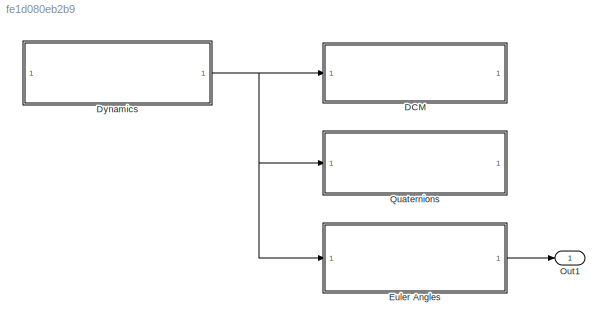
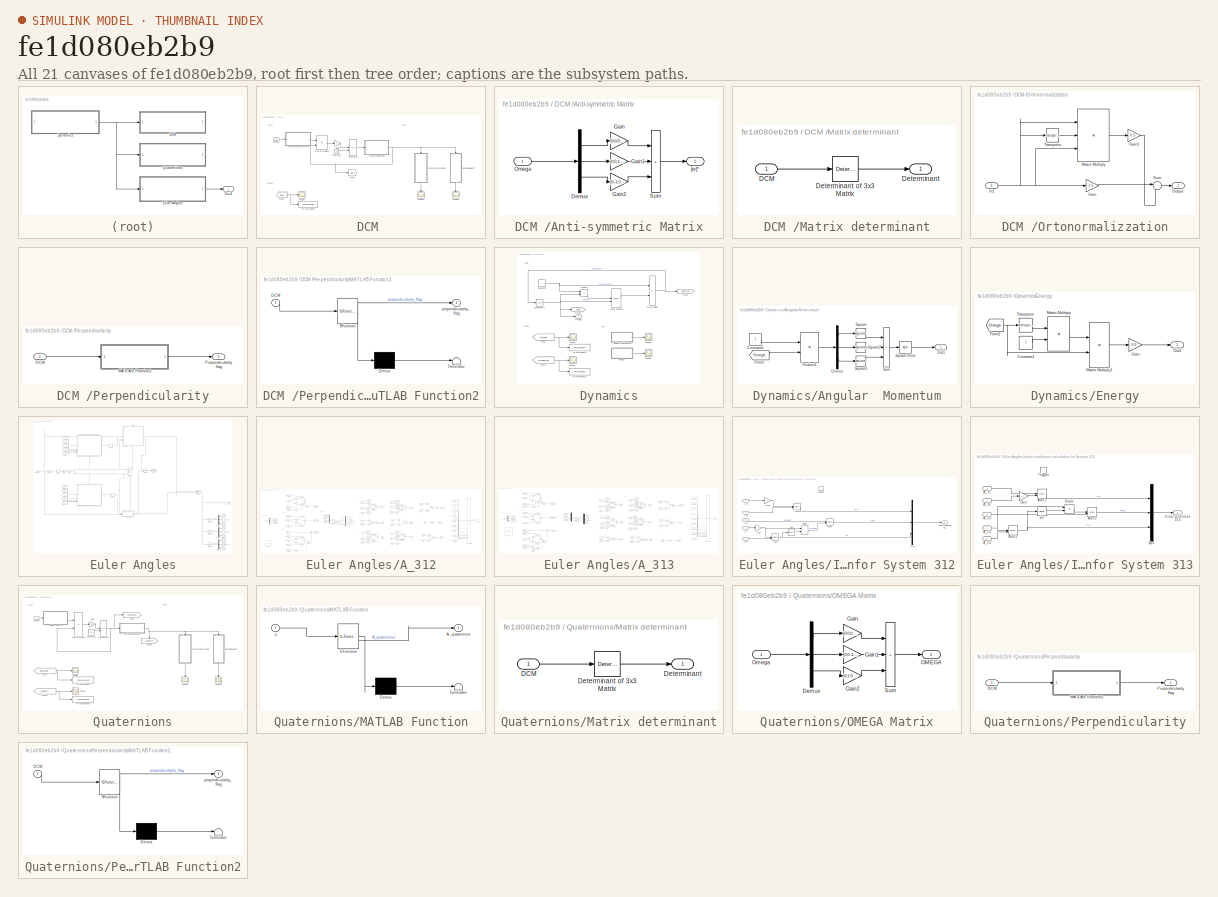
[diagram: thumbnail index - all 21 canvases of the model, root first then tree order]
MODEL slx_fe1d080eb2b9
KIND model
CONFIG AbsTol = auto
CONFIG EnableMultiTasking = off
CONFIG FixedStep = 0.1
CONFIG MaxStep = auto
CONFIG MinStep = auto
CONFIG RelTol = 1e-3
CONFIG SampleTimeConstraint = Unconstrained
CONFIG SolverName = ode4
CONFIG StartTime = 0.0
CONFIG StopTime = 100
BLOCK [SubSystem] DCM 
BLOCK [SubSystem] DCM /Anti-symmetric Matrix
  NameLocation = top
BLOCK [Demux] DCM /Anti-symmetric Matrix/Demux
  Outputs = 3
BLOCK [Gain] DCM /Anti-symmetric Matrix/Gain
  Gain = [0,0,0;0,0,-1;0,1,0]
BLOCK [Gain] DCM /Anti-symmetric Matrix/Gain1
  Gain = [0,0,1;0,0,0;-1,0,0]
BLOCK [Gain] DCM /Anti-symmetric Matrix/Gain2
  Gain = [0,-1,0;1,0,0;0,0,0]
BLOCK [Inport] DCM /Anti-symmetric Matrix/Omega
BLOCK [Sum] DCM /Anti-symmetric Matrix/Sum
  IconShape = rectangular
  Inputs = +++
BLOCK [Outport] DCM /Anti-symmetric Matrix/[w]^
BLOCK [Constant] DCM /Constant1
  Value = A0
BLOCK [From] DCM /From
  GotoTag = DCM
  TagVisibility = global
BLOCK [Gain] DCM /Gain1
  Gain = -1
BLOCK [Goto] DCM /Goto
  GotoTag = DCM
  TagVisibility = global
BLOCK [Integrator] DCM /Integrator2
  InitialConditionSource = external
BLOCK [Product] DCM /Matrix Multiply1
  Multiplication = Matrix(*)
BLOCK [SubSystem] DCM /Matrix determinant
BLOCK [Inport] DCM /Matrix determinant/DCM
BLOCK [Outport] DCM /Matrix determinant/Determinant
BLOCK [Reference] DCM /Matrix determinant/Determinant of 3x3 Matrix  REF=sharedutil/Determinant of
3x3 Matrix
  LibrarySourceBlock = aerolibutil/Determinant of\n3x3 Matrix
  SourceBlock = sharedutil/Determinant of\n3x3 Matrix
  SourceType = Determinant of 3x3 Matrix
BLOCK [Inport] DCM /Omega
BLOCK [SubSystem] DCM /Ortonormalizzation
  NameLocation = top
BLOCK [Gain] DCM /Ortonormalizzation/Gain
  Gain = 1.5
BLOCK [Gain] DCM /Ortonormalizzation/Gain1
  Gain = 0.5
BLOCK [Inport] DCM /Ortonormalizzation/In1
BLOCK [Product] DCM /Ortonormalizzation/Matrix Multiply
  Inputs = 3
  Multiplication = Matrix(*)
BLOCK [Outport] DCM /Ortonormalizzation/Output
  NameLocation = top
BLOCK [Sum] DCM /Ortonormalizzation/Sum
  Inputs = |+-
BLOCK [Math] DCM /Ortonormalizzation/Transpose
  Operator = transpose
BLOCK [SubSystem] DCM /Perpendicularity
BLOCK [Inport] DCM /Perpendicularity/DCM
BLOCK [SubSystem] DCM /Perpendicularity/MATLAB Function2
  ErrorFcn = Stateflow.Translate.translate
  LibrarySourceBlock = simulink/User-Defined\nFunctions/MATLAB Function
  PermitHierarchicalResolution = ExplicitOnly
  SFBlockType = MATLAB Function
  TreatAsAtomicUnit = on
BLOCK [Demux] DCM /Perpendicularity/MATLAB Function2/ Demux 
  Outputs = 1
BLOCK [S-Function] DCM /Perpendicularity/MATLAB Function2/ SFunction 
  EnableBusSupport = on
  FunctionName = sf_sfun
  PortCounts = [1 2]
  SFcnIsStateOwnerBlock = off
  SFunctionDeploymentMode = off
  Tag = Stateflow S-Function 3
BLOCK [Terminator] DCM /Perpendicularity/MATLAB Function2/ Terminator 
BLOCK [Inport] DCM /Perpendicularity/MATLAB Function2/DCM
BLOCK [Outport] DCM /Perpendicularity/MATLAB Function2/perpendicularity_flag
BLOCK [Outport] DCM /Perpendicularity/Perpendicularity flag
BLOCK [Scope] DCM /Scope
  Floating = off
  NumInputPorts = 1
  ScopeSpecificationString = Simulink.scopes.TimeScopeBlockCfg('CurrentConfiguration', extmgr.ConfigurationSet(extmgr.Configuration('Core','General UI',true),extmgr.Configuration('Core','Source UI',true),extmgr.Configuration('Sources','WiredSimulink',true,'DataLoggingVariableName','ScopeData3'),extmgr.Configuration('Visuals','Time Domain',true,'SerializedDisplays',{struct('MinYLimReal','-1.24998','MaxYLimReal','1.25','YLabelR...<+1703ch>
BLOCK [Scope] DCM /Scope1
  Floating = off
  NameLocation = left
  NumInputPorts = 1
  ScopeSpecificationString = Simulink.scopes.TimeScopeBlockCfg('CurrentConfiguration', extmgr.ConfigurationSet(extmgr.Configuration('Core','General UI',true),extmgr.Configuration('Core','Source UI',true),extmgr.Configuration('Sources','WiredSimulink',true,'DataLoggingVariableName','ScopeData6'),extmgr.Configuration('Visuals','Time Domain',true,'SerializedDisplays',{struct('MinYLimReal','0.99999999999','MaxYLimReal','1.0000000...<+1456ch>
BLOCK [Scope] DCM /Scope2
  Floating = off
  NameLocation = left
  NumInputPorts = 1
  ScopeSpecificationString = Simulink.scopes.TimeScopeBlockCfg('CurrentConfiguration', extmgr.ConfigurationSet(extmgr.Configuration('Core','General UI',true),extmgr.Configuration('Core','Source UI',true),extmgr.Configuration('Sources','WiredSimulink',true,'DataLoggingVariableName','ScopeData7'),extmgr.Configuration('Visuals','Time Domain',true,'SerializedDisplays',{struct('MinYLimReal','-0.0000000000036','MaxYLimReal','0.0000...<+1510ch>
BLOCK [ToWorkspace] DCM /To Workspace
  FixptAsFi = on
  MaxDataPoints = inf
  SampleTime = -1
  SaveFormat = Timeseries
  VariableName = simout
BLOCK [SubSystem] Dynamics
BLOCK [SubSystem] Dynamics/Angular  Momentum
BLOCK [Constant] Dynamics/Angular  Momentum/Constant1
  Value = I
BLOCK [Demux] Dynamics/Angular  Momentum/Demux
  Outputs = 3
BLOCK [From] Dynamics/Angular  Momentum/From2
  GotoTag = Omega
  TagVisibility = global
BLOCK [Outport] Dynamics/Angular  Momentum/Out1
BLOCK [Product] Dynamics/Angular  Momentum/Product1
  Multiplication = Matrix(*)
BLOCK [Math] Dynamics/Angular  Momentum/Square
  Operator = square
BLOCK [Sqrt] Dynamics/Angular  Momentum/Square Root
BLOCK [Math] Dynamics/Angular  Momentum/Square1
  Operator = square
BLOCK [Math] Dynamics/Angular  Momentum/Square2
  Operator = square
BLOCK [Sum] Dynamics/Angular  Momentum/Sum
  IconShape = rectangular
  Inputs = +++
BLOCK [Constant] Dynamics/Constant
  Value = I
BLOCK [Reference] Dynamics/Cross Product  REF=matrix_library/Cross Product
  LibrarySourceBlock = simulink/Matrix\nOperations/Cross Product
  SourceBlock = matrix_library/Cross Product
  SourceType = CrossProduct
BLOCK [SubSystem] Dynamics/Energy
BLOCK [Constant] Dynamics/Energy/Constant1
  Value = I
BLOCK [From] Dynamics/Energy/From2
  GotoTag = Omega
  TagVisibility = global
BLOCK [Gain] Dynamics/Energy/Gain
  Gain = 0.5
BLOCK [Product] Dynamics/Energy/Matrix Multiply
  Multiplication = Matrix(*)
BLOCK [Product] Dynamics/Energy/Matrix Multiply1
  Multiplication = Matrix(*)
BLOCK [Outport] Dynamics/Energy/Out1
BLOCK [Math] Dynamics/Energy/Transpose
  Operator = transpose
BLOCK [From] Dynamics/From
  GotoTag = Omega
  TagVisibility = global
BLOCK [From] Dynamics/From1
  GotoTag = Omega_dot
BLOCK [Goto] Dynamics/Goto
  GotoTag = Omega_dot
BLOCK [Goto] Dynamics/Goto1
  GotoTag = Omega
  TagVisibility = global
BLOCK [Integrator] Dynamics/Integrator1
  InitialCondition = w0
BLOCK [Product] Dynamics/Matrix Divide
  Inputs = /*
  Multiplication = Matrix(*)
BLOCK [Outport] Dynamics/Omega
BLOCK [Product] Dynamics/Product
  Multiplication = Matrix(*)
BLOCK [Scope] Dynamics/Scope
  Floating = off
  NumInputPorts = 1
  ScopeSpecificationString = Simulink.scopes.TimeScopeBlockCfg('CurrentConfiguration', extmgr.ConfigurationSet(extmgr.Configuration('Core','General UI',true),extmgr.Configuration('Core','Source UI',true),extmgr.Configuration('Sources','WiredSimulink',true),extmgr.Configuration('Visuals','Time Domain',true,'SerializedDisplays',{struct('MinYLimReal','-1.01319','MaxYLimReal','1.01319','YLabelReal','','MinYLimMag','0.00000','MaxY...<+1353ch>
BLOCK [Scope] Dynamics/Scope1
  Floating = off
  NumInputPorts = 1
  ScopeSpecificationString = Simulink.scopes.TimeScopeBlockCfg('CurrentConfiguration', extmgr.ConfigurationSet(extmgr.Configuration('Core','General UI',true),extmgr.Configuration('Core','Source UI',true),extmgr.Configuration('Sources','WiredSimulink',true,'DataLoggingVariableName','ScopeData1'),extmgr.Configuration('Visuals','Time Domain',true,'SerializedDisplays',{struct('MinYLimReal','-0.42457','MaxYLimReal','0.42457','YLab...<+1404ch>
BLOCK [Scope] Dynamics/Scope2
  Floating = off
  NumInputPorts = 1
  ScopeSpecificationString = Simulink.scopes.TimeScopeBlockCfg('CurrentConfiguration', extmgr.ConfigurationSet(extmgr.Configuration('Core','General UI',true),extmgr.Configuration('Core','Source UI',true),extmgr.Configuration('Sources','WiredSimulink',true,'DataLoggingVariableName','ScopeData1'),extmgr.Configuration('Visuals','Time Domain',true,'SerializedDisplays',{struct('MinYLimReal','0.0447132243','MaxYLimReal','0.04471322...<+1446ch>
BLOCK [Scope] Dynamics/Scope3
  Floating = off
  NumInputPorts = 1
  ScopeSpecificationString = Simulink.scopes.TimeScopeBlockCfg('CurrentConfiguration', extmgr.ConfigurationSet(extmgr.Configuration('Core','General UI',true),extmgr.Configuration('Core','Source UI',true),extmgr.Configuration('Sources','WiredSimulink',true,'DataLoggingVariableName','ScopeData2'),extmgr.Configuration('Visuals','Time Domain',true,'SerializedDisplays',{struct('MinYLimReal','0.01830474937','MaxYLimReal','0.0183047...<+1443ch>
BLOCK [ToWorkspace] Dynamics/To Workspace
  FixptAsFi = on
  MaxDataPoints = inf
  SampleTime = -1
  SaveFormat = Timeseries
  VariableName = omega
BLOCK [ToWorkspace] Dynamics/To Workspace1
  FixptAsFi = on
  MaxDataPoints = inf
  SampleTime = -1
  SaveFormat = Timeseries
  VariableName = omega_dot
BLOCK [SubSystem] Euler Angles
  Commented = on
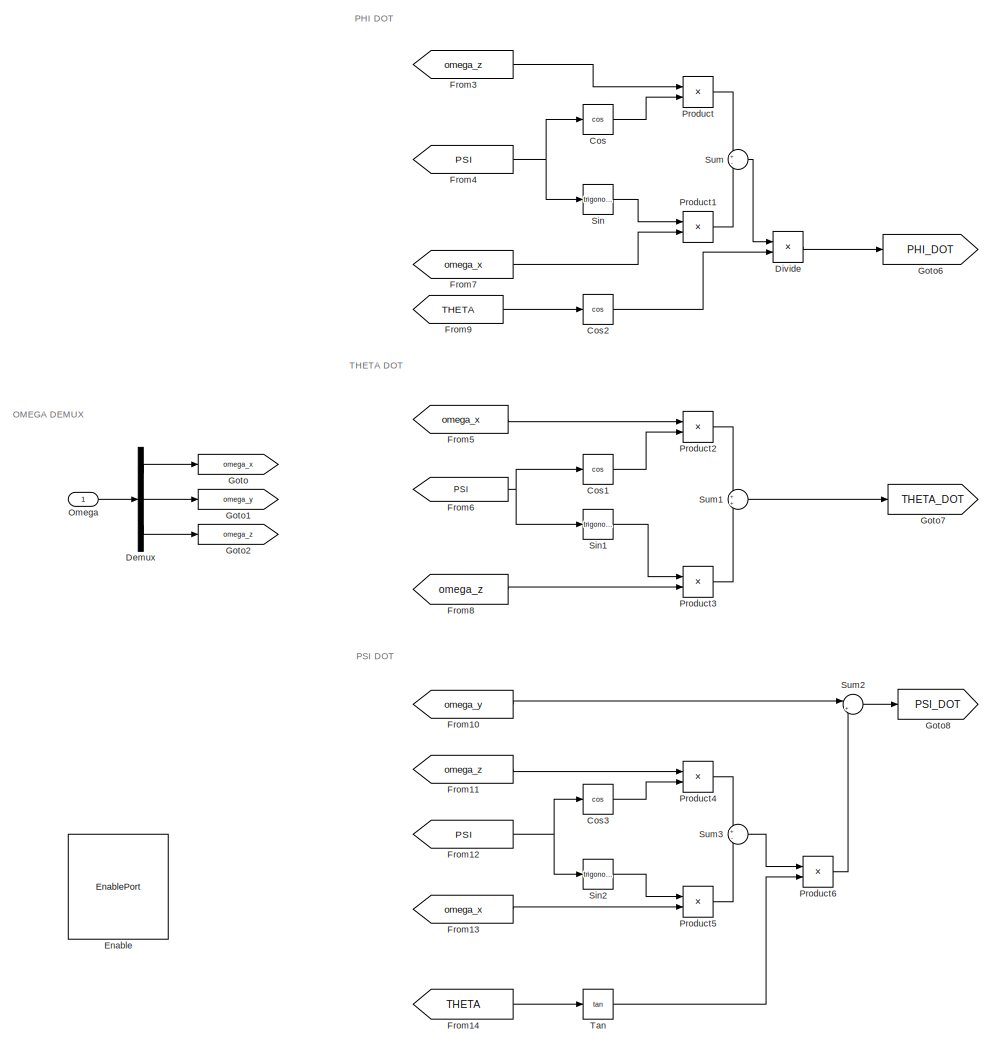
[diagram: Euler Angles/A_312 - part 1/4, left side, full height]
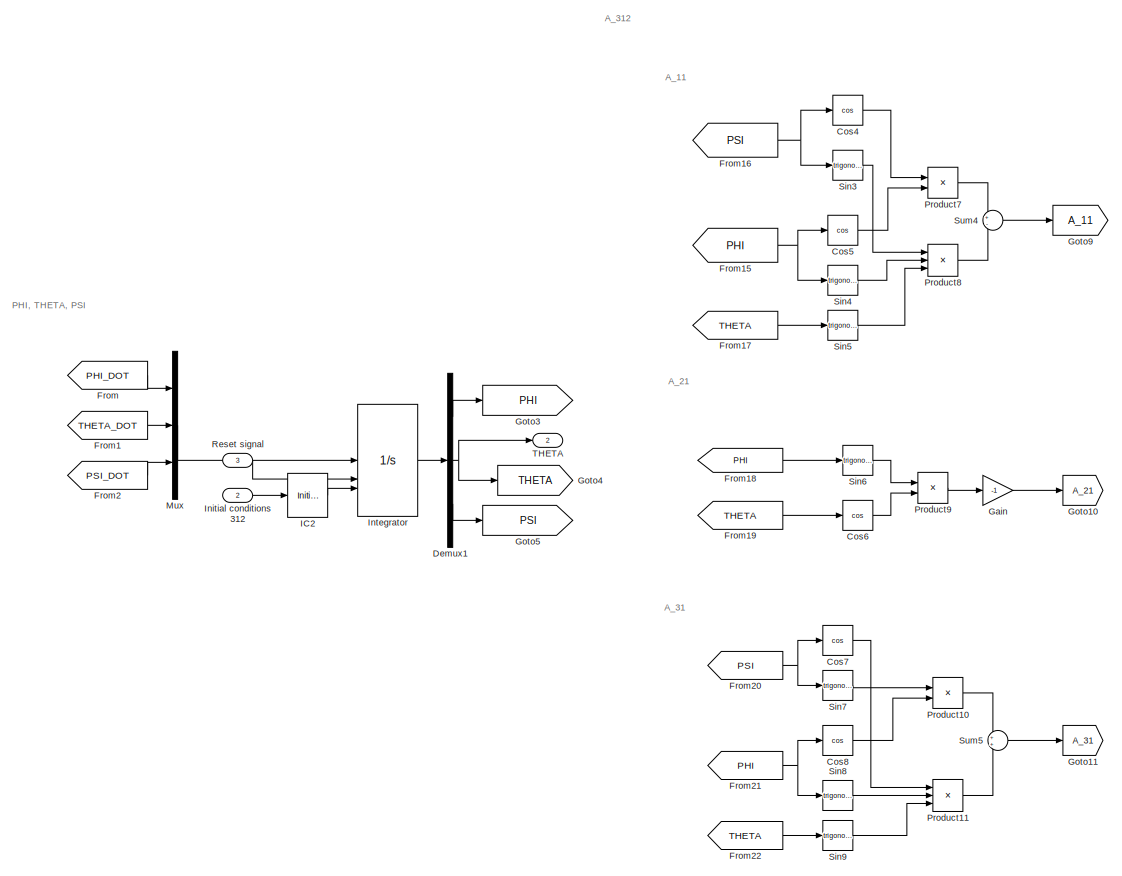
[diagram: Euler Angles/A_312 - part 2/4, center side, full height]
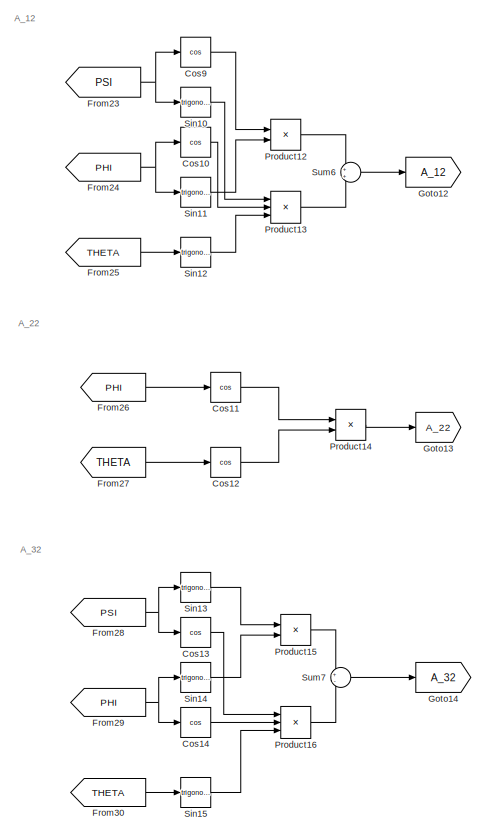
[diagram: Euler Angles/A_312 - part 3/4, center side, full height]
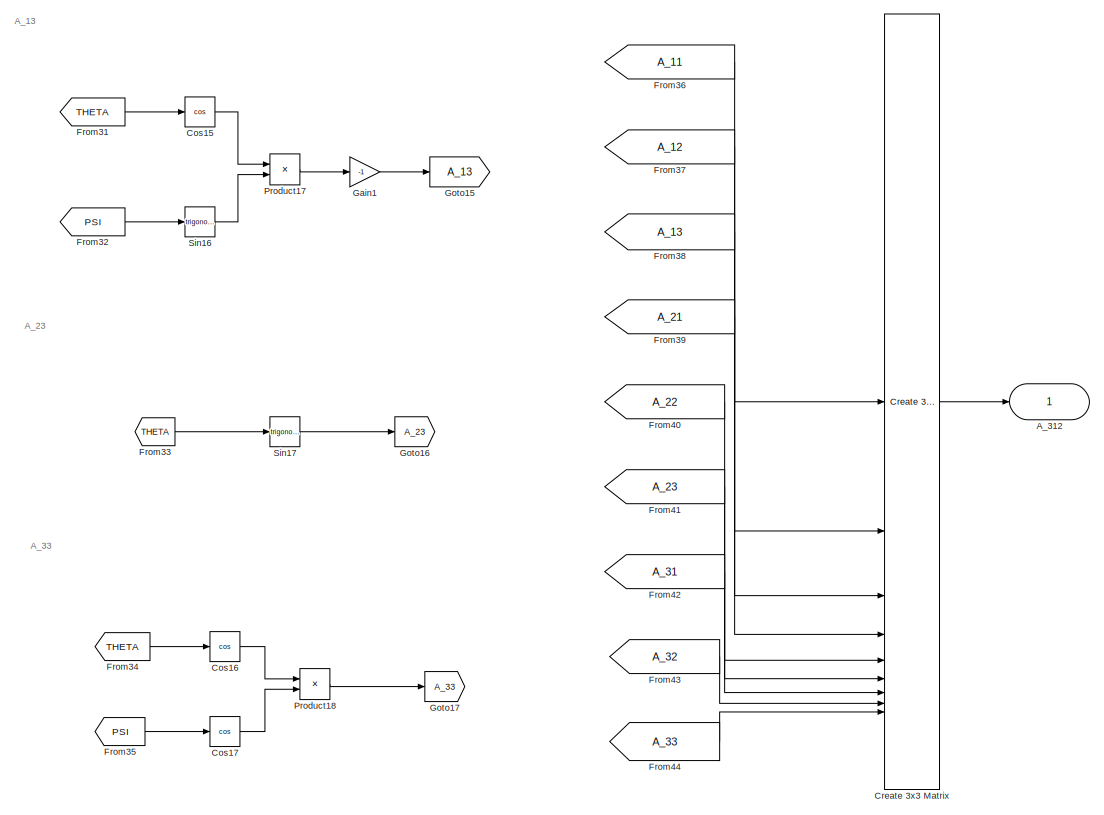
[diagram: Euler Angles/A_312 - part 4/4, right side, full height]
BLOCK [SubSystem] Euler Angles/A_312
BLOCK [Outport] Euler Angles/A_312/A_312
BLOCK [Trigonometry] Euler Angles/A_312/Cos
  Operator = cos
BLOCK [Trigonometry] Euler Angles/A_312/Cos1
  Operator = cos
BLOCK [Trigonometry] Euler Angles/A_312/Cos10
  Operator = cos
BLOCK [Trigonometry] Euler Angles/A_312/Cos11
  Operator = cos
BLOCK [Trigonometry] Euler Angles/A_312/Cos12
  Operator = cos
BLOCK [Trigonometry] Euler Angles/A_312/Cos13
  Operator = cos
BLOCK [Trigonometry] Euler Angles/A_312/Cos14
  Operator = cos
BLOCK [Trigonometry] Euler Angles/A_312/Cos15
  Operator = cos
BLOCK [Trigonometry] Euler Angles/A_312/Cos16
  Operator = cos
BLOCK [Trigonometry] Euler Angles/A_312/Cos17
  Operator = cos
BLOCK [Trigonometry] Euler Angles/A_312/Cos2
  Operator = cos
BLOCK [Trigonometry] Euler Angles/A_312/Cos3
  Operator = cos
BLOCK [Trigonometry] Euler Angles/A_312/Cos4
  Operator = cos
BLOCK [Trigonometry] Euler Angles/A_312/Cos5
  Operator = cos
BLOCK [Trigonometry] Euler Angles/A_312/Cos6
  Operator = cos
BLOCK [Trigonometry] Euler Angles/A_312/Cos7
  Operator = cos
BLOCK [Trigonometry] Euler Angles/A_312/Cos8
  Operator = cos
BLOCK [Trigonometry] Euler Angles/A_312/Cos9
  Operator = cos
BLOCK [Reference] Euler Angles/A_312/Create 3x3 Matrix  REF=sharedutil/Create 3x3 Matrix
  LibrarySourceBlock = aerolibutil/Create 3x3 Matrix
  SourceBlock = sharedutil/Create 3x3 Matrix
  SourceType = Create 3x3 Matrix
BLOCK [Demux] Euler Angles/A_312/Demux
  Outputs = 3
BLOCK [Demux] Euler Angles/A_312/Demux1
  Outputs = 3
BLOCK [Product] Euler Angles/A_312/Divide
  Inputs = */
BLOCK [EnablePort] Euler Angles/A_312/Enable
BLOCK [From] Euler Angles/A_312/From
  GotoTag = PHI_DOT
BLOCK [From] Euler Angles/A_312/From1
  GotoTag = THETA_DOT
BLOCK [From] Euler Angles/A_312/From10
  GotoTag = omega_y
BLOCK [From] Euler Angles/A_312/From11
  GotoTag = omega_z
BLOCK [From] Euler Angles/A_312/From12
  GotoTag = PSI
BLOCK [From] Euler Angles/A_312/From13
  GotoTag = omega_x
BLOCK [From] Euler Angles/A_312/From14
  GotoTag = THETA
BLOCK [From] Euler Angles/A_312/From15
  GotoTag = PHI
BLOCK [From] Euler Angles/A_312/From16
  GotoTag = PSI
BLOCK [From] Euler Angles/A_312/From17
  GotoTag = THETA
BLOCK [From] Euler Angles/A_312/From18
  GotoTag = PHI
BLOCK [From] Euler Angles/A_312/From19
  GotoTag = THETA
BLOCK [From] Euler Angles/A_312/From2
  GotoTag = PSI_DOT
BLOCK [From] Euler Angles/A_312/From20
  GotoTag = PSI
BLOCK [From] Euler Angles/A_312/From21
  GotoTag = PHI
BLOCK [From] Euler Angles/A_312/From22
  GotoTag = THETA
BLOCK [From] Euler Angles/A_312/From23
  GotoTag = PSI
BLOCK [From] Euler Angles/A_312/From24
  GotoTag = PHI
BLOCK [From] Euler Angles/A_312/From25
  GotoTag = THETA
BLOCK [From] Euler Angles/A_312/From26
  GotoTag = PHI
BLOCK [From] Euler Angles/A_312/From27
  GotoTag = THETA
BLOCK [From] Euler Angles/A_312/From28
  GotoTag = PSI
BLOCK [From] Euler Angles/A_312/From29
  GotoTag = PHI
BLOCK [From] Euler Angles/A_312/From3
  GotoTag = omega_z
BLOCK [From] Euler Angles/A_312/From30
  GotoTag = THETA
BLOCK [From] Euler Angles/A_312/From31
  GotoTag = THETA
BLOCK [From] Euler Angles/A_312/From32
  GotoTag = PSI
BLOCK [From] Euler Angles/A_312/From33
  GotoTag = THETA
BLOCK [From] Euler Angles/A_312/From34
  GotoTag = THETA
BLOCK [From] Euler Angles/A_312/From35
  GotoTag = PSI
BLOCK [From] Euler Angles/A_312/From36
  GotoTag = A_11
BLOCK [From] Euler Angles/A_312/From37
  GotoTag = A_12
BLOCK [From] Euler Angles/A_312/From38
  GotoTag = A_13
BLOCK [From] Euler Angles/A_312/From39
  GotoTag = A_21
BLOCK [From] Euler Angles/A_312/From4
  GotoTag = PSI
BLOCK [From] Euler Angles/A_312/From40
  GotoTag = A_22
BLOCK [From] Euler Angles/A_312/From41
  GotoTag = A_23
BLOCK [From] Euler Angles/A_312/From42
  GotoTag = A_31
BLOCK [From] Euler Angles/A_312/From43
  GotoTag = A_32
BLOCK [From] Euler Angles/A_312/From44
  GotoTag = A_33
BLOCK [From] Euler Angles/A_312/From5
  GotoTag = omega_x
BLOCK [From] Euler Angles/A_312/From6
  GotoTag = PSI
BLOCK [From] Euler Angles/A_312/From7
  GotoTag = omega_x
BLOCK [From] Euler Angles/A_312/From8
  GotoTag = omega_z
BLOCK [From] Euler Angles/A_312/From9
  GotoTag = THETA
BLOCK [Gain] Euler Angles/A_312/Gain
  Gain = -1
BLOCK [Gain] Euler Angles/A_312/Gain1
  Gain = -1
BLOCK [Goto] Euler Angles/A_312/Goto
  GotoTag = omega_x
BLOCK [Goto] Euler Angles/A_312/Goto1
  GotoTag = omega_y
BLOCK [Goto] Euler Angles/A_312/Goto10
  GotoTag = A_21
BLOCK [Goto] Euler Angles/A_312/Goto11
  GotoTag = A_31
BLOCK [Goto] Euler Angles/A_312/Goto12
  GotoTag = A_12
BLOCK [Goto] Euler Angles/A_312/Goto13
  GotoTag = A_22
BLOCK [Goto] Euler Angles/A_312/Goto14
  GotoTag = A_32
BLOCK [Goto] Euler Angles/A_312/Goto15
  GotoTag = A_13
BLOCK [Goto] Euler Angles/A_312/Goto16
  GotoTag = A_23
BLOCK [Goto] Euler Angles/A_312/Goto17
  GotoTag = A_33
BLOCK [Goto] Euler Angles/A_312/Goto2
  GotoTag = omega_z
BLOCK [Goto] Euler Angles/A_312/Goto3
  GotoTag = PHI
BLOCK [Goto] Euler Angles/A_312/Goto4
  GotoTag = THETA
BLOCK [Goto] Euler Angles/A_312/Goto5
  GotoTag = PSI
BLOCK [Goto] Euler Angles/A_312/Goto6
  GotoTag = PHI_DOT
BLOCK [Goto] Euler Angles/A_312/Goto7
  GotoTag = THETA_DOT
BLOCK [Goto] Euler Angles/A_312/Goto8
  GotoTag = PSI_DOT
BLOCK [Goto] Euler Angles/A_312/Goto9
  GotoTag = A_11
BLOCK [InitialCondition] Euler Angles/A_312/IC2
  Value = [0;0;0]
BLOCK [Inport] Euler Angles/A_312/Initial conditions 312
  NameLocation = top
  Port = 2
BLOCK [Integrator] Euler Angles/A_312/Integrator
  ExternalReset = rising
  InitialConditionSource = external
BLOCK [Mux] Euler Angles/A_312/Mux
  DisplayOption = bar
  Inputs = 3
BLOCK [Inport] Euler Angles/A_312/Omega
BLOCK [Product] Euler Angles/A_312/Product
BLOCK [Product] Euler Angles/A_312/Product1
BLOCK [Product] Euler Angles/A_312/Product10
BLOCK [Product] Euler Angles/A_312/Product11
  Inputs = 3
BLOCK [Product] Euler Angles/A_312/Product12
BLOCK [Product] Euler Angles/A_312/Product13
  Inputs = 3
BLOCK [Product] Euler Angles/A_312/Product14
BLOCK [Product] Euler Angles/A_312/Product15
BLOCK [Product] Euler Angles/A_312/Product16
  Inputs = 3
BLOCK [Product] Euler Angles/A_312/Product17
BLOCK [Product] Euler Angles/A_312/Product18
BLOCK [Product] Euler Angles/A_312/Product2
BLOCK [Product] Euler Angles/A_312/Product3
BLOCK [Product] Euler Angles/A_312/Product4
BLOCK [Product] Euler Angles/A_312/Product5
BLOCK [Product] Euler Angles/A_312/Product6
BLOCK [Product] Euler Angles/A_312/Product7
BLOCK [Product] Euler Angles/A_312/Product8
  Inputs = 3
BLOCK [Product] Euler Angles/A_312/Product9
BLOCK [Inport] Euler Angles/A_312/Reset signal
  NameLocation = top
  Port = 3
BLOCK [Trigonometry] Euler Angles/A_312/Sin
BLOCK [Trigonometry] Euler Angles/A_312/Sin1
BLOCK [Trigonometry] Euler Angles/A_312/Sin10
BLOCK [Trigonometry] Euler Angles/A_312/Sin11
BLOCK [Trigonometry] Euler Angles/A_312/Sin12
BLOCK [Trigonometry] Euler Angles/A_312/Sin13
BLOCK [Trigonometry] Euler Angles/A_312/Sin14
BLOCK [Trigonometry] Euler Angles/A_312/Sin15
BLOCK [Trigonometry] Euler Angles/A_312/Sin16
BLOCK [Trigonometry] Euler Angles/A_312/Sin17
BLOCK [Trigonometry] Euler Angles/A_312/Sin2
BLOCK [Trigonometry] Euler Angles/A_312/Sin3
BLOCK [Trigonometry] Euler Angles/A_312/Sin4
BLOCK [Trigonometry] Euler Angles/A_312/Sin5
BLOCK [Trigonometry] Euler Angles/A_312/Sin6
BLOCK [Trigonometry] Euler Angles/A_312/Sin7
BLOCK [Trigonometry] Euler Angles/A_312/Sin8
BLOCK [Trigonometry] Euler Angles/A_312/Sin9
BLOCK [Sum] Euler Angles/A_312/Sum
  Inputs = +-
BLOCK [Sum] Euler Angles/A_312/Sum1
BLOCK [Sum] Euler Angles/A_312/Sum2
  Inputs = |+-
BLOCK [Sum] Euler Angles/A_312/Sum3
  Inputs = +-
BLOCK [Sum] Euler Angles/A_312/Sum4
  Inputs = +-
BLOCK [Sum] Euler Angles/A_312/Sum5
BLOCK [Sum] Euler Angles/A_312/Sum6
BLOCK [Sum] Euler Angles/A_312/Sum7
  Inputs = +-
BLOCK [Outport] Euler Angles/A_312/THETA
  Port = 2
BLOCK [Trigonometry] Euler Angles/A_312/Tan
  Operator = tan
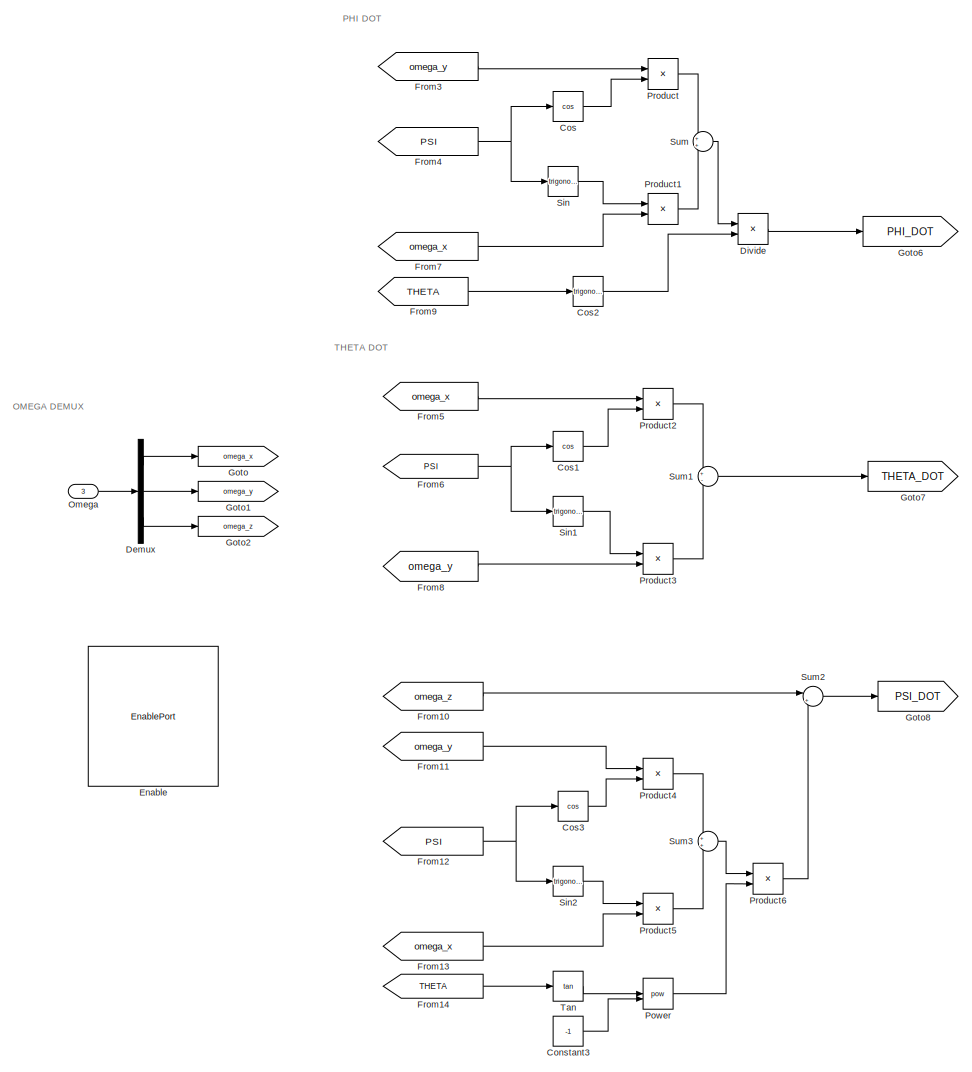
[diagram: Euler Angles/A_313 - part 1/4, left side, full height]
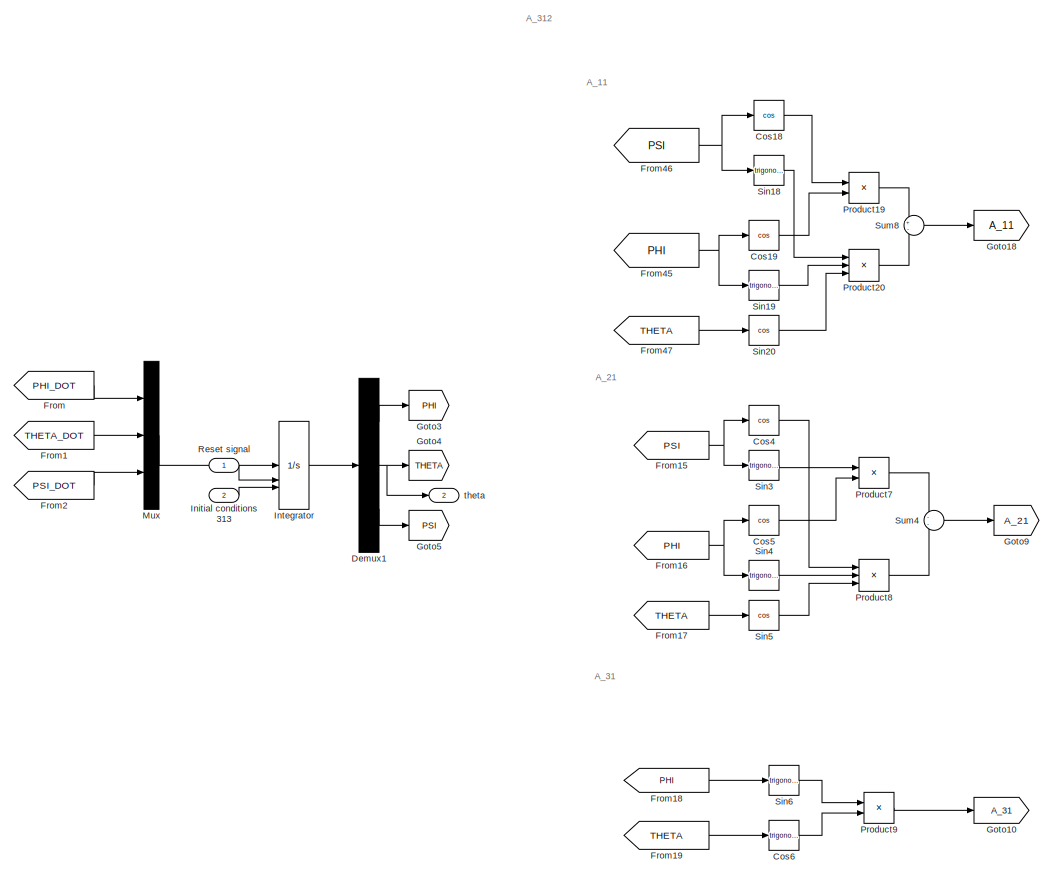
[diagram: Euler Angles/A_313 - part 2/4, center side, full height]
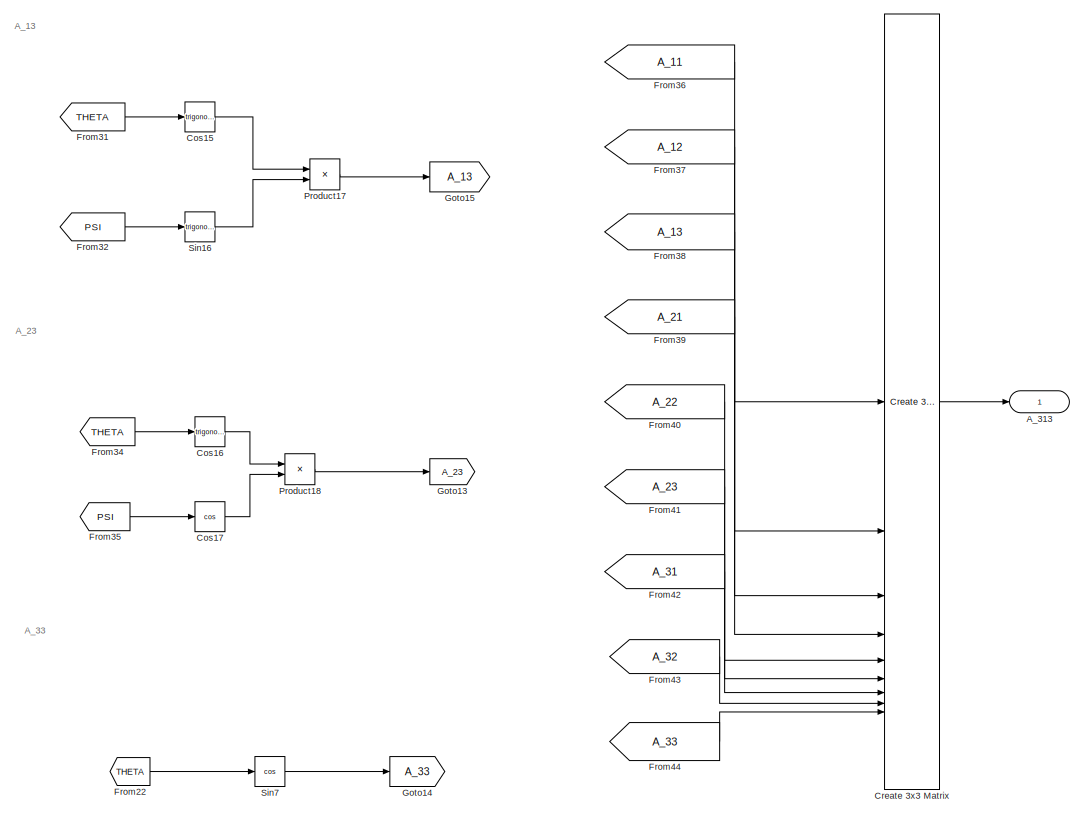
[diagram: Euler Angles/A_313 - part 3/4, right side, full height]
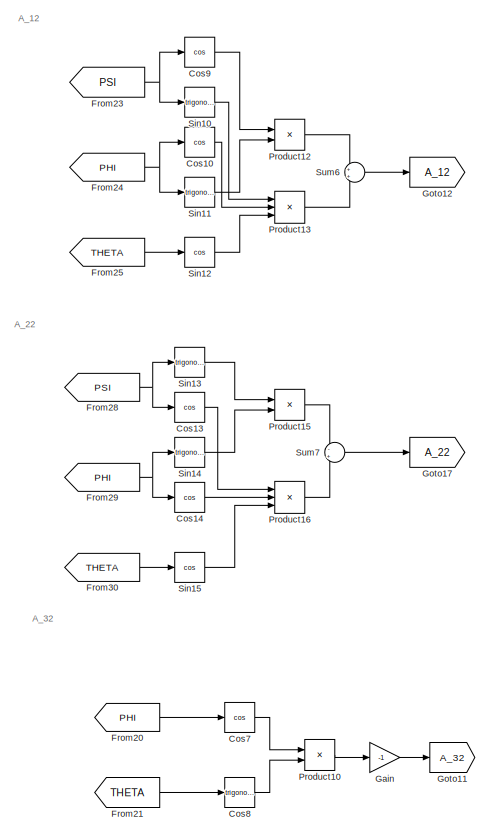
[diagram: Euler Angles/A_313 - part 4/4, center side, full height]
BLOCK [SubSystem] Euler Angles/A_313
  NameLocation = top
BLOCK [Outport] Euler Angles/A_313/A_313
BLOCK [Constant] Euler Angles/A_313/Constant3
  Value = -1
BLOCK [Trigonometry] Euler Angles/A_313/Cos
  Operator = cos
BLOCK [Trigonometry] Euler Angles/A_313/Cos1
  Operator = cos
BLOCK [Trigonometry] Euler Angles/A_313/Cos10
  Operator = cos
BLOCK [Trigonometry] Euler Angles/A_313/Cos13
  Operator = cos
BLOCK [Trigonometry] Euler Angles/A_313/Cos14
  Operator = cos
BLOCK [Trigonometry] Euler Angles/A_313/Cos15
BLOCK [Trigonometry] Euler Angles/A_313/Cos16
BLOCK [Trigonometry] Euler Angles/A_313/Cos17
  Operator = cos
BLOCK [Trigonometry] Euler Angles/A_313/Cos18
  Operator = cos
BLOCK [Trigonometry] Euler Angles/A_313/Cos19
  Operator = cos
BLOCK [Trigonometry] Euler Angles/A_313/Cos2
BLOCK [Trigonometry] Euler Angles/A_313/Cos3
  Operator = cos
BLOCK [Trigonometry] Euler Angles/A_313/Cos4
  Operator = cos
BLOCK [Trigonometry] Euler Angles/A_313/Cos5
  Operator = cos
BLOCK [Trigonometry] Euler Angles/A_313/Cos6
BLOCK [Trigonometry] Euler Angles/A_313/Cos7
  Operator = cos
BLOCK [Trigonometry] Euler Angles/A_313/Cos8
BLOCK [Trigonometry] Euler Angles/A_313/Cos9
  Operator = cos
BLOCK [Reference] Euler Angles/A_313/Create 3x3 Matrix  REF=sharedutil/Create 3x3 Matrix
  LibrarySourceBlock = aerolibutil/Create 3x3 Matrix
  SourceBlock = sharedutil/Create 3x3 Matrix
  SourceType = Create 3x3 Matrix
BLOCK [Demux] Euler Angles/A_313/Demux
  Outputs = 3
BLOCK [Demux] Euler Angles/A_313/Demux1
  Outputs = 3
BLOCK [Product] Euler Angles/A_313/Divide
  Inputs = */
BLOCK [EnablePort] Euler Angles/A_313/Enable
BLOCK [From] Euler Angles/A_313/From
  GotoTag = PHI_DOT
BLOCK [From] Euler Angles/A_313/From1
  GotoTag = THETA_DOT
BLOCK [From] Euler Angles/A_313/From10
  GotoTag = omega_z
BLOCK [From] Euler Angles/A_313/From11
  GotoTag = omega_y
BLOCK [From] Euler Angles/A_313/From12
  GotoTag = PSI
BLOCK [From] Euler Angles/A_313/From13
  GotoTag = omega_x
BLOCK [From] Euler Angles/A_313/From14
  GotoTag = THETA
BLOCK [From] Euler Angles/A_313/From15
  GotoTag = PSI
BLOCK [From] Euler Angles/A_313/From16
  GotoTag = PHI
BLOCK [From] Euler Angles/A_313/From17
  GotoTag = THETA
BLOCK [From] Euler Angles/A_313/From18
  GotoTag = PHI
BLOCK [From] Euler Angles/A_313/From19
  GotoTag = THETA
BLOCK [From] Euler Angles/A_313/From2
  GotoTag = PSI_DOT
BLOCK [From] Euler Angles/A_313/From20
  GotoTag = PHI
BLOCK [From] Euler Angles/A_313/From21
  GotoTag = THETA
BLOCK [From] Euler Angles/A_313/From22
  GotoTag = THETA
BLOCK [From] Euler Angles/A_313/From23
  GotoTag = PSI
BLOCK [From] Euler Angles/A_313/From24
  GotoTag = PHI
BLOCK [From] Euler Angles/A_313/From25
  GotoTag = THETA
BLOCK [From] Euler Angles/A_313/From28
  GotoTag = PSI
BLOCK [From] Euler Angles/A_313/From29
  GotoTag = PHI
BLOCK [From] Euler Angles/A_313/From3
  GotoTag = omega_y
BLOCK [From] Euler Angles/A_313/From30
  GotoTag = THETA
BLOCK [From] Euler Angles/A_313/From31
  GotoTag = THETA
BLOCK [From] Euler Angles/A_313/From32
  GotoTag = PSI
BLOCK [From] Euler Angles/A_313/From34
  GotoTag = THETA
BLOCK [From] Euler Angles/A_313/From35
  GotoTag = PSI
BLOCK [From] Euler Angles/A_313/From36
  GotoTag = A_11
BLOCK [From] Euler Angles/A_313/From37
  GotoTag = A_12
BLOCK [From] Euler Angles/A_313/From38
  GotoTag = A_13
BLOCK [From] Euler Angles/A_313/From39
  GotoTag = A_21
BLOCK [From] Euler Angles/A_313/From4
  GotoTag = PSI
BLOCK [From] Euler Angles/A_313/From40
  GotoTag = A_22
BLOCK [From] Euler Angles/A_313/From41
  GotoTag = A_23
BLOCK [From] Euler Angles/A_313/From42
  GotoTag = A_31
BLOCK [From] Euler Angles/A_313/From43
  GotoTag = A_32
BLOCK [From] Euler Angles/A_313/From44
  GotoTag = A_33
BLOCK [From] Euler Angles/A_313/From45
  GotoTag = PHI
BLOCK [From] Euler Angles/A_313/From46
  GotoTag = PSI
BLOCK [From] Euler Angles/A_313/From47
  GotoTag = THETA
BLOCK [From] Euler Angles/A_313/From5
  GotoTag = omega_x
BLOCK [From] Euler Angles/A_313/From6
  GotoTag = PSI
BLOCK [From] Euler Angles/A_313/From7
  GotoTag = omega_x
BLOCK [From] Euler Angles/A_313/From8
  GotoTag = omega_y
BLOCK [From] Euler Angles/A_313/From9
  GotoTag = THETA
BLOCK [Gain] Euler Angles/A_313/Gain
  Gain = -1
BLOCK [Goto] Euler Angles/A_313/Goto
  GotoTag = omega_x
BLOCK [Goto] Euler Angles/A_313/Goto1
  GotoTag = omega_y
BLOCK [Goto] Euler Angles/A_313/Goto10
  GotoTag = A_31
BLOCK [Goto] Euler Angles/A_313/Goto11
  GotoTag = A_32
BLOCK [Goto] Euler Angles/A_313/Goto12
  GotoTag = A_12
BLOCK [Goto] Euler Angles/A_313/Goto13
  GotoTag = A_23
BLOCK [Goto] Euler Angles/A_313/Goto14
  GotoTag = A_33
BLOCK [Goto] Euler Angles/A_313/Goto15
  GotoTag = A_13
BLOCK [Goto] Euler Angles/A_313/Goto17
  GotoTag = A_22
BLOCK [Goto] Euler Angles/A_313/Goto18
  GotoTag = A_11
BLOCK [Goto] Euler Angles/A_313/Goto2
  GotoTag = omega_z
BLOCK [Goto] Euler Angles/A_313/Goto3
  GotoTag = PHI
BLOCK [Goto] Euler Angles/A_313/Goto4
  GotoTag = THETA
BLOCK [Goto] Euler Angles/A_313/Goto5
  GotoTag = PSI
BLOCK [Goto] Euler Angles/A_313/Goto6
  GotoTag = PHI_DOT
BLOCK [Goto] Euler Angles/A_313/Goto7
  GotoTag = THETA_DOT
BLOCK [Goto] Euler Angles/A_313/Goto8
  GotoTag = PSI_DOT
BLOCK [Goto] Euler Angles/A_313/Goto9
  GotoTag = A_21
BLOCK [Inport] Euler Angles/A_313/Initial conditions 313
  Port = 2
BLOCK [Integrator] Euler Angles/A_313/Integrator
  ExternalReset = falling
  InitialConditionSource = external
BLOCK [Mux] Euler Angles/A_313/Mux
  DisplayOption = bar
  Inputs = 3
BLOCK [Inport] Euler Angles/A_313/Omega
  Port = 3
BLOCK [Math] Euler Angles/A_313/Power
  Operator = pow
BLOCK [Product] Euler Angles/A_313/Product
BLOCK [Product] Euler Angles/A_313/Product1
BLOCK [Product] Euler Angles/A_313/Product10
BLOCK [Product] Euler Angles/A_313/Product12
BLOCK [Product] Euler Angles/A_313/Product13
  Inputs = 3
BLOCK [Product] Euler Angles/A_313/Product15
BLOCK [Product] Euler Angles/A_313/Product16
  Inputs = 3
BLOCK [Product] Euler Angles/A_313/Product17
BLOCK [Product] Euler Angles/A_313/Product18
BLOCK [Product] Euler Angles/A_313/Product19
BLOCK [Product] Euler Angles/A_313/Product2
BLOCK [Product] Euler Angles/A_313/Product20
  Inputs = 3
BLOCK [Product] Euler Angles/A_313/Product3
BLOCK [Product] Euler Angles/A_313/Product4
BLOCK [Product] Euler Angles/A_313/Product5
BLOCK [Product] Euler Angles/A_313/Product6
BLOCK [Product] Euler Angles/A_313/Product7
BLOCK [Product] Euler Angles/A_313/Product8
  Inputs = 3
BLOCK [Product] Euler Angles/A_313/Product9
BLOCK [Inport] Euler Angles/A_313/Reset signal
  NameLocation = top
BLOCK [Trigonometry] Euler Angles/A_313/Sin
BLOCK [Trigonometry] Euler Angles/A_313/Sin1
BLOCK [Trigonometry] Euler Angles/A_313/Sin10
BLOCK [Trigonometry] Euler Angles/A_313/Sin11
BLOCK [Trigonometry] Euler Angles/A_313/Sin12
  Operator = cos
BLOCK [Trigonometry] Euler Angles/A_313/Sin13
BLOCK [Trigonometry] Euler Angles/A_313/Sin14
BLOCK [Trigonometry] Euler Angles/A_313/Sin15
  Operator = cos
BLOCK [Trigonometry] Euler Angles/A_313/Sin16
BLOCK [Trigonometry] Euler Angles/A_313/Sin18
BLOCK [Trigonometry] Euler Angles/A_313/Sin19
BLOCK [Trigonometry] Euler Angles/A_313/Sin2
BLOCK [Trigonometry] Euler Angles/A_313/Sin20
  Operator = cos
BLOCK [Trigonometry] Euler Angles/A_313/Sin3
BLOCK [Trigonometry] Euler Angles/A_313/Sin4
BLOCK [Trigonometry] Euler Angles/A_313/Sin5
  Operator = cos
BLOCK [Trigonometry] Euler Angles/A_313/Sin6
BLOCK [Trigonometry] Euler Angles/A_313/Sin7
  Operator = cos
BLOCK [Sum] Euler Angles/A_313/Sum
BLOCK [Sum] Euler Angles/A_313/Sum1
  Inputs = +-
BLOCK [Sum] Euler Angles/A_313/Sum2
  Inputs = |+-
BLOCK [Sum] Euler Angles/A_313/Sum3
BLOCK [Sum] Euler Angles/A_313/Sum4
  Inputs = --
BLOCK [Sum] Euler Angles/A_313/Sum6
BLOCK [Sum] Euler Angles/A_313/Sum7
  Inputs = -+
BLOCK [Sum] Euler Angles/A_313/Sum8
  Inputs = +-
BLOCK [Trigonometry] Euler Angles/A_313/Tan
  Operator = tan
BLOCK [Outport] Euler Angles/A_313/theta
  Port = 2
BLOCK [Trigonometry] Euler Angles/Cos
  Operator = cos
BLOCK [Delay] Euler Angles/Delay
  DelayLength = 1
  InitialCondition = [0.1;0.1;0.1]
  InputPortMap = u0
BLOCK [Delay] Euler Angles/Delay1
  DelayLength = 1
  InputPortMap = u0
BLOCK [Delay] Euler Angles/Delay2
  DelayLength = 1
  InputPortMap = u0
BLOCK [Delay] Euler Angles/Delay3
  DelayLength = 1
  InputPortMap = u0
BLOCK [Delay] Euler Angles/Delay9
  DelayLength = 1
  InputPortMap = u0
BLOCK [Demux] Euler Angles/Demux
  Outputs = 3
BLOCK [Demux] Euler Angles/Demux1
  Outputs = 3
BLOCK [Demux] Euler Angles/Demux2
  Outputs = 3
BLOCK [From] Euler Angles/From
  GotoTag = THETA
BLOCK [From] Euler Angles/From1
  GotoTag = A_13
BLOCK [From] Euler Angles/From10
  GotoTag = A_33
BLOCK [From] Euler Angles/From2
  GotoTag = A_21
BLOCK [From] Euler Angles/From3
  GotoTag = A_22
BLOCK [From] Euler Angles/From4
  GotoTag = A_23
BLOCK [From] Euler Angles/From5
  GotoTag = A_33
BLOCK [From] Euler Angles/From6
  GotoTag = A_13
BLOCK [From] Euler Angles/From7
  GotoTag = A_23
BLOCK [From] Euler Angles/From8
  GotoTag = A_31
BLOCK [From] Euler Angles/From9
  GotoTag = A_32
BLOCK [Gain] Euler Angles/Gain
  Gain = 2
BLOCK [Goto] Euler Angles/Goto
  GotoTag = A_11
BLOCK [Goto] Euler Angles/Goto1
  GotoTag = A_12
BLOCK [Goto] Euler Angles/Goto2
  GotoTag = A_13
BLOCK [Goto] Euler Angles/Goto3
  GotoTag = A_21
BLOCK [Goto] Euler Angles/Goto4
  GotoTag = A_22
BLOCK [Goto] Euler Angles/Goto5
  GotoTag = A_23
BLOCK [Goto] Euler Angles/Goto6
  GotoTag = A_31
BLOCK [Goto] Euler Angles/Goto7
  GotoTag = A_32
BLOCK [Goto] Euler Angles/Goto8
  GotoTag = A_33
BLOCK [Goto] Euler Angles/Goto9
  GotoTag = THETA
BLOCK [SubSystem] Euler Angles/Initial conditions calculation for System 312
  NameLocation = top
  TreatAsAtomicUnit = on
BLOCK [Inport] Euler Angles/Initial conditions calculation for System 312/A_13
BLOCK [Inport] Euler Angles/Initial conditions calculation for System 312/A_21
  Port = 2
BLOCK [Inport] Euler Angles/Initial conditions calculation for System 312/A_22
  Port = 3
BLOCK [Inport] Euler Angles/Initial conditions calculation for System 312/A_23
  Port = 4
BLOCK [Inport] Euler Angles/Initial conditions calculation for System 312/A_33
  Port = 5
BLOCK [Trigonometry] Euler Angles/Initial conditions calculation for System 312/Atan1
  Operator = atan2
BLOCK [Trigonometry] Euler Angles/Initial conditions calculation for System 312/Atan2
  Operator = atan2
BLOCK [Trigonometry] Euler Angles/Initial conditions calculation for System 312/Atan3
  Operator = atan2
BLOCK [Trigonometry] Euler Angles/Initial conditions calculation for System 312/Cos
BLOCK [Product] Euler Angles/Initial conditions calculation for System 312/Divide
  Inputs = */
BLOCK [Gain] Euler Angles/Initial conditions calculation for System 312/Gain
  Gain = -1
BLOCK [Gain] Euler Angles/Initial conditions calculation for System 312/Gain1
  Gain = -1
BLOCK [Outport] Euler Angles/Initial conditions calculation for System 312/Initial conditions 312
  InitialOutput = [0;0;0]
BLOCK [Mux] Euler Angles/Initial conditions calculation for System 312/Mux
  DisplayOption = bar
  Inputs = 3
BLOCK [TriggerPort] Euler Angles/Initial conditions calculation for System 312/Trigger
  StatesWhenEnabling = held
  VariantControl = (inherit)
BLOCK [SubSystem] Euler Angles/Initial conditions calculation for System 313
  TreatAsAtomicUnit = on
BLOCK [Inport] Euler Angles/Initial conditions calculation for System 313/A_13
BLOCK [Inport] Euler Angles/Initial conditions calculation for System 313/A_23
  Port = 2
BLOCK [Inport] Euler Angles/Initial conditions calculation for System 313/A_31
  Port = 3
BLOCK [Inport] Euler Angles/Initial conditions calculation for System 313/A_32
  Port = 4
BLOCK [Inport] Euler Angles/Initial conditions calculation for System 313/A_33
  Port = 5
BLOCK [Trigonometry] Euler Angles/Initial conditions calculation for System 313/Atan1
  Operator = atan2
BLOCK [Trigonometry] Euler Angles/Initial conditions calculation for System 313/Atan2
  Operator = atan2
BLOCK [Trigonometry] Euler Angles/Initial conditions calculation for System 313/Atan3
  Operator = atan2
BLOCK [Product] Euler Angles/Initial conditions calculation for System 313/Divide
  Inputs = */
BLOCK [Gain] Euler Angles/Initial conditions calculation for System 313/Gain
  Gain = -1
BLOCK [Outport] Euler Angles/Initial conditions calculation for System 313/Initial conditions 313
BLOCK [Mux] Euler Angles/Initial conditions calculation for System 313/Mux
  DisplayOption = bar
  Inputs = 3
BLOCK [Trigonometry] Euler Angles/Initial conditions calculation for System 313/Sin
BLOCK [TriggerPort] Euler Angles/Initial conditions calculation for System 313/Trigger
  StatesWhenEnabling = held
  TriggerType = falling
  VariantControl = (inherit)
BLOCK [Merge] Euler Angles/Merge
BLOCK [Merge] Euler Angles/Merge1
BLOCK [Inport] Euler Angles/Omega
  NameLocation = top
BLOCK [Outport] Euler Angles/Out1
BLOCK [Selector] Euler Angles/Selector
  IndexOptions = Index vector (dialog),Index vector (dialog)
  Indices = [1 2 3],1
  InputPortWidth = 3
  NumberOfDimensions = 2
  OutputSizes = 1,1
BLOCK [Selector] Euler Angles/Selector1
  IndexOptions = Index vector (dialog),Index vector (dialog)
  Indices = [1 2 3],2
  InputPortWidth = 3
  NumberOfDimensions = 2
  OutputSizes = 1,1
BLOCK [Selector] Euler Angles/Selector2
  IndexOptions = Index vector (dialog),Index vector (dialog)
  Indices = [1 2 3],3
  InputPortWidth = 3
  NumberOfDimensions = 2
  OutputSizes = 1,1
BLOCK [Outport] Out1
BLOCK [SubSystem] Quaternions
BLOCK [Constant] Quaternions/Constant1
  Value = q0
BLOCK [From] Quaternions/From
  GotoTag = quaternions
BLOCK [From] Quaternions/From1
  GotoTag = A_quaternions
  TagVisibility = global
BLOCK [Gain] Quaternions/Gain
  Gain = 0.5
BLOCK [Goto] Quaternions/Goto
  GotoTag = quaternions
BLOCK [Goto] Quaternions/Goto1
  GotoTag = A_quaternions
  NameLocation = left
  TagVisibility = global
BLOCK [Integrator] Quaternions/Integrator1
  InitialCondition = q0
  InitialConditionSource = external
BLOCK [SubSystem] Quaternions/MATLAB Function
  ErrorFcn = Stateflow.Translate.translate
  LibrarySourceBlock = simulink/User-Defined\nFunctions/MATLAB Function
  PermitHierarchicalResolution = ExplicitOnly
  SFBlockType = MATLAB Function
  TreatAsAtomicUnit = on
BLOCK [Demux] Quaternions/MATLAB Function/ Demux 
  Outputs = 1
BLOCK [S-Function] Quaternions/MATLAB Function/ SFunction 
  EnableBusSupport = on
  FunctionName = sf_sfun
  PortCounts = [1 2]
  SFcnIsStateOwnerBlock = off
  SFunctionDeploymentMode = off
  Tag = Stateflow S-Function 2
BLOCK [Terminator] Quaternions/MATLAB Function/ Terminator 
BLOCK [Outport] Quaternions/MATLAB Function/A_quaternions
BLOCK [Inport] Quaternions/MATLAB Function/q
BLOCK [Product] Quaternions/Matrix Multiply
  Multiplication = Matrix(*)
BLOCK [SubSystem] Quaternions/Matrix determinant
BLOCK [Inport] Quaternions/Matrix determinant/DCM
BLOCK [Outport] Quaternions/Matrix determinant/Determinant
BLOCK [Reference] Quaternions/Matrix determinant/Determinant of 3x3 Matrix  REF=sharedutil/Determinant of
3x3 Matrix
  LibrarySourceBlock = aerolibutil/Determinant of\n3x3 Matrix
  SourceBlock = sharedutil/Determinant of\n3x3 Matrix
  SourceType = Determinant of 3x3 Matrix
BLOCK [SubSystem] Quaternions/OMEGA Matrix
  NameLocation = top
BLOCK [Demux] Quaternions/OMEGA Matrix/Demux
  Outputs = 3
BLOCK [Gain] Quaternions/OMEGA Matrix/Gain
  Gain = [0 0 0 1; 0 0 1 0; 0 -1 0 0; -1 0 0 0]
BLOCK [Gain] Quaternions/OMEGA Matrix/Gain1
  Gain = [0 0 -1 0; 0 0 0 1; 1 0 0 0; 0 -1 0 0]
BLOCK [Gain] Quaternions/OMEGA Matrix/Gain2
  Gain = [0 1 0 0; -1 0 0 0; 0 0 0 1; 0 0 -1 0]
BLOCK [Outport] Quaternions/OMEGA Matrix/OMEGA
BLOCK [Inport] Quaternions/OMEGA Matrix/Omega
BLOCK [Sum] Quaternions/OMEGA Matrix/Sum
  IconShape = rectangular
  Inputs = +++
BLOCK [Inport] Quaternions/Omega
BLOCK [SubSystem] Quaternions/Perpendicularity
BLOCK [Inport] Quaternions/Perpendicularity/DCM
BLOCK [SubSystem] Quaternions/Perpendicularity/MATLAB Function2
  ErrorFcn = Stateflow.Translate.translate
  LibrarySourceBlock = simulink/User-Defined\nFunctions/MATLAB Function
  PermitHierarchicalResolution = ExplicitOnly
  SFBlockType = MATLAB Function
  TreatAsAtomicUnit = on
BLOCK [Demux] Quaternions/Perpendicularity/MATLAB Function2/ Demux 
  Outputs = 1
BLOCK [S-Function] Quaternions/Perpendicularity/MATLAB Function2/ SFunction 
  EnableBusSupport = on
  FunctionName = sf_sfun
  PortCounts = [1 2]
  SFcnIsStateOwnerBlock = off
  SFunctionDeploymentMode = off
  Tag = Stateflow S-Function 1
BLOCK [Terminator] Quaternions/Perpendicularity/MATLAB Function2/ Terminator 
BLOCK [Inport] Quaternions/Perpendicularity/MATLAB Function2/DCM
BLOCK [Outport] Quaternions/Perpendicularity/MATLAB Function2/perpendicularity_flag
BLOCK [Outport] Quaternions/Perpendicularity/Perpendicularity flag
BLOCK [Scope] Quaternions/Scope
  Floating = off
  NumInputPorts = 1
  ScopeSpecificationString = Simulink.scopes.TimeScopeBlockCfg('CurrentConfiguration', extmgr.ConfigurationSet(extmgr.Configuration('Core','General UI',true),extmgr.Configuration('Core','Source UI',true),extmgr.Configuration('Sources','WiredSimulink',true,'DataLoggingVariableName','ScopeData1'),extmgr.Configuration('Visuals','Time Domain',true,'SerializedDisplays',{struct('MinYLimReal','-1.24948','MaxYLimReal','1.24994','YLab...<+1439ch>
BLOCK [Scope] Quaternions/Scope1
  Floating = off
  NumInputPorts = 1
  ScopeSpecificationString = Simulink.scopes.TimeScopeBlockCfg('CurrentConfiguration', extmgr.ConfigurationSet(extmgr.Configuration('Core','General UI',true),extmgr.Configuration('Core','Source UI',true),extmgr.Configuration('Sources','WiredSimulink',true,'DataLoggingVariableName','ScopeData2'),extmgr.Configuration('Visuals','Time Domain',true,'SerializedDisplays',{struct('MinYLimReal','-1.24998','MaxYLimReal','1.25','YLabelR...<+1598ch>
BLOCK [Scope] Quaternions/Scope3
  Floating = off
  NameLocation = left
  NumInputPorts = 1
  ScopeSpecificationString = Simulink.scopes.TimeScopeBlockCfg('CurrentConfiguration', extmgr.ConfigurationSet(extmgr.Configuration('Core','General UI',true),extmgr.Configuration('Core','Source UI',true),extmgr.Configuration('Sources','WiredSimulink',true,'DataLoggingVariableName','ScopeData4'),extmgr.Configuration('Visuals','Time Domain',true,'SerializedDisplays',{struct('MinYLimReal','0.99999957','MaxYLimReal','1.00000013',...<+1399ch>
BLOCK [Scope] Quaternions/Scope4
  Floating = off
  NameLocation = left
  NumInputPorts = 1
  ScopeSpecificationString = Simulink.scopes.TimeScopeBlockCfg('CurrentConfiguration', extmgr.ConfigurationSet(extmgr.Configuration('Core','General UI',true),extmgr.Configuration('Core','Source UI',true),extmgr.Configuration('Sources','WiredSimulink',true,'DataLoggingVariableName','ScopeData5'),extmgr.Configuration('Visuals','Time Domain',true,'SerializedDisplays',{struct('MinYLimReal','-0.00000000000000028','MaxYLimReal','0....<+1515ch>
BLOCK [ToWorkspace] Quaternions/To Workspace
  FixptAsFi = on
  MaxDataPoints = inf
  SampleTime = -1
  SaveFormat = Timeseries
  VariableName = quaternions
BLOCK [ToWorkspace] Quaternions/To Workspace1
  FixptAsFi = on
  MaxDataPoints = inf
  SampleTime = -1
  SaveFormat = Timeseries
  VariableName = A_quaternions
ANNOTATION DCM : LOGIC
ANNOTATION DCM : SCOPES
ANNOTATION DCM : TEST
ANNOTATION Dynamics: Logic
ANNOTATION Dynamics: Scopes
ANNOTATION Dynamics: TEST
ANNOTATION Euler Angles/A_312: A_11
ANNOTATION Euler Angles/A_312: A_12
ANNOTATION Euler Angles/A_312: A_13
ANNOTATION Euler Angles/A_312: A_21
ANNOTATION Euler Angles/A_312: A_22
ANNOTATION Euler Angles/A_312: A_23
ANNOTATION Euler Angles/A_312: A_31
ANNOTATION Euler Angles/A_312: A_312
ANNOTATION Euler Angles/A_312: A_32
ANNOTATION Euler Angles/A_312: A_33
ANNOTATION Euler Angles/A_312: OMEGA DEMUX
ANNOTATION Euler Angles/A_312: PHI DOT
ANNOTATION Euler Angles/A_312: PHI, THETA, PSI
ANNOTATION Euler Angles/A_312: PSI DOT
ANNOTATION Euler Angles/A_312: THETA DOT
ANNOTATION Euler Angles/A_313: A_11
ANNOTATION Euler Angles/A_313: A_12
ANNOTATION Euler Angles/A_313: A_13
ANNOTATION Euler Angles/A_313: A_21
ANNOTATION Euler Angles/A_313: A_22
ANNOTATION Euler Angles/A_313: A_23
ANNOTATION Euler Angles/A_313: A_31
ANNOTATION Euler Angles/A_313: A_312
ANNOTATION Euler Angles/A_313: A_32
ANNOTATION Euler Angles/A_313: A_33
ANNOTATION Euler Angles/A_313: OMEGA DEMUX
ANNOTATION Euler Angles/A_313: PHI DOT
ANNOTATION Euler Angles/A_313: THETA DOT
ANNOTATION Quaternions: LOGIC
ANNOTATION Quaternions: TEST
LINE DCM /Anti-symmetric Matrix/Demux:1 -> DCM /Anti-symmetric Matrix/Gain:1
LINE DCM /Anti-symmetric Matrix/Demux:2 -> DCM /Anti-symmetric Matrix/Gain1:1
LINE DCM /Anti-symmetric Matrix/Demux:3 -> DCM /Anti-symmetric Matrix/Gain2:1
LINE DCM /Anti-symmetric Matrix/Gain1:1 -> DCM /Anti-symmetric Matrix/Sum:2
LINE DCM /Anti-symmetric Matrix/Gain2:1 -> DCM /Anti-symmetric Matrix/Sum:3
LINE DCM /Anti-symmetric Matrix/Gain:1 -> DCM /Anti-symmetric Matrix/Sum:1
LINE DCM /Anti-symmetric Matrix/Omega:1 -> DCM /Anti-symmetric Matrix/Demux:1
LINE DCM /Anti-symmetric Matrix/Sum:1 -> DCM /Anti-symmetric Matrix/[w]^:1
LINE DCM /Anti-symmetric Matrix:1 -> DCM /Matrix Multiply1:1
LINE DCM /Constant1:1 -> DCM /Integrator2:2
NET DCM /From:1 -> DCM /Scope:1, DCM /To Workspace:1
LINE DCM /Gain1:1 -> DCM /Integrator2:1
LINE DCM /Integrator2:1 -> DCM /Ortonormalizzation:1
LINE DCM /Matrix Multiply1:1 -> DCM /Gain1:1
LINE DCM /Matrix determinant/DCM:1 -> DCM /Matrix determinant/Determinant of 3x3 Matrix:1
LINE DCM /Matrix determinant/Determinant of 3x3 Matrix:1 -> DCM /Matrix determinant/Determinant:1
LINE DCM /Matrix determinant:1 -> DCM /Scope1:1
LINE DCM /Omega:1 -> DCM /Anti-symmetric Matrix:1
LINE DCM /Ortonormalizzation/Gain1:1 -> DCM /Ortonormalizzation/Sum:2
LINE DCM /Ortonormalizzation/Gain:1 -> DCM /Ortonormalizzation/Sum:1
NET DCM /Ortonormalizzation/In1:1 -> DCM /Ortonormalizzation/Gain:1, DCM /Ortonormalizzation/Matrix Multiply:1, DCM /Ortonormalizzation/Matrix Multiply:3, DCM /Ortonormalizzation/Transpose:1
LINE DCM /Ortonormalizzation/Matrix Multiply:1 -> DCM /Ortonormalizzation/Gain1:1
LINE DCM /Ortonormalizzation/Sum:1 -> DCM /Ortonormalizzation/Output:1
LINE DCM /Ortonormalizzation/Transpose:1 -> DCM /Ortonormalizzation/Matrix Multiply:2
NET DCM /Ortonormalizzation:1 -> DCM /Goto:1, DCM /Matrix Multiply1:2, DCM /Matrix determinant:1, DCM /Perpendicularity:1
LINE DCM /Perpendicularity/DCM:1 -> DCM /Perpendicularity/MATLAB Function2:1
LINE DCM /Perpendicularity/MATLAB Function2:1 -> DCM /Perpendicularity/Perpendicularity flag:1
LINE DCM /Perpendicularity:1 -> DCM /Scope2:1
LINE Dynamics/Angular  Momentum/Constant1:1 -> Dynamics/Angular  Momentum/Product1:1
LINE Dynamics/Angular  Momentum/Demux:1 -> Dynamics/Angular  Momentum/Square:1
LINE Dynamics/Angular  Momentum/Demux:2 -> Dynamics/Angular  Momentum/Square2:1
LINE Dynamics/Angular  Momentum/Demux:3 -> Dynamics/Angular  Momentum/Square1:1
LINE Dynamics/Angular  Momentum/From2:1 -> Dynamics/Angular  Momentum/Product1:2
LINE Dynamics/Angular  Momentum/Product1:1 -> Dynamics/Angular  Momentum/Demux:1
LINE Dynamics/Angular  Momentum/Square Root:1 -> Dynamics/Angular  Momentum/Out1:1
LINE Dynamics/Angular  Momentum/Square1:1 -> Dynamics/Angular  Momentum/Sum:3
LINE Dynamics/Angular  Momentum/Square2:1 -> Dynamics/Angular  Momentum/Sum:2
LINE Dynamics/Angular  Momentum/Square:1 -> Dynamics/Angular  Momentum/Sum:1
LINE Dynamics/Angular  Momentum/Sum:1 -> Dynamics/Angular  Momentum/Square Root:1
LINE Dynamics/Angular  Momentum:1 -> Dynamics/Scope2:1
NET Dynamics/Constant:1 -> Dynamics/Matrix Divide:1, Dynamics/Product:1
LINE Dynamics/Cross Product:1 -> Dynamics/Matrix Divide:2
LINE Dynamics/Energy/Constant1:1 -> Dynamics/Energy/Matrix Multiply:2
NET Dynamics/Energy/From2:1 -> Dynamics/Energy/Matrix Multiply1:2, Dynamics/Energy/Transpose:1
LINE Dynamics/Energy/Gain:1 -> Dynamics/Energy/Out1:1
LINE Dynamics/Energy/Matrix Multiply1:1 -> Dynamics/Energy/Gain:1
LINE Dynamics/Energy/Matrix Multiply:1 -> Dynamics/Energy/Matrix Multiply1:1
LINE Dynamics/Energy/Transpose:1 -> Dynamics/Energy/Matrix Multiply:1
LINE Dynamics/Energy:1 -> Dynamics/Scope3:1
NET Dynamics/From1:1 -> Dynamics/Scope1:1, Dynamics/To Workspace1:1
NET Dynamics/From:1 -> Dynamics/Scope:1, Dynamics/To Workspace:1
NET Dynamics/Integrator1:1 -> Dynamics/Cross Product:2, Dynamics/Goto1:1, Dynamics/Omega:1, Dynamics/Product:2
NET Dynamics/Matrix Divide:1 -> Dynamics/Goto:1, Dynamics/Integrator1:1
LINE Dynamics/Product:1 -> Dynamics/Cross Product:1
NET Dynamics:1 -> DCM :1, Euler Angles:1, Quaternions:1
LINE Euler Angles/A_312/Cos10:1 -> Euler Angles/A_312/Product13:2
LINE Euler Angles/A_312/Cos11:1 -> Euler Angles/A_312/Product14:1
LINE Euler Angles/A_312/Cos12:1 -> Euler Angles/A_312/Product14:2
LINE Euler Angles/A_312/Cos13:1 -> Euler Angles/A_312/Product16:1
LINE Euler Angles/A_312/Cos14:1 -> Euler Angles/A_312/Product16:2
LINE Euler Angles/A_312/Cos15:1 -> Euler Angles/A_312/Product17:1
LINE Euler Angles/A_312/Cos16:1 -> Euler Angles/A_312/Product18:1
LINE Euler Angles/A_312/Cos17:1 -> Euler Angles/A_312/Product18:2
LINE Euler Angles/A_312/Cos1:1 -> Euler Angles/A_312/Product2:2
LINE Euler Angles/A_312/Cos2:1 -> Euler Angles/A_312/Divide:2
LINE Euler Angles/A_312/Cos3:1 -> Euler Angles/A_312/Product4:2
LINE Euler Angles/A_312/Cos4:1 -> Euler Angles/A_312/Product7:1
LINE Euler Angles/A_312/Cos5:1 -> Euler Angles/A_312/Product7:2
LINE Euler Angles/A_312/Cos6:1 -> Euler Angles/A_312/Product9:2
LINE Euler Angles/A_312/Cos7:1 -> Euler Angles/A_312/Product11:1
LINE Euler Angles/A_312/Cos8:1 -> Euler Angles/A_312/Product10:2
LINE Euler Angles/A_312/Cos9:1 -> Euler Angles/A_312/Product12:1
LINE Euler Angles/A_312/Cos:1 -> Euler Angles/A_312/Product:2
LINE Euler Angles/A_312/Create 3x3 Matrix:1 -> Euler Angles/A_312/A_312:1
LINE Euler Angles/A_312/Demux1:1 -> Euler Angles/A_312/Goto3:1
NET Euler Angles/A_312/Demux1:2 -> Euler Angles/A_312/Goto4:1, Euler Angles/A_312/THETA:1
LINE Euler Angles/A_312/Demux1:3 -> Euler Angles/A_312/Goto5:1
LINE Euler Angles/A_312/Demux:1 -> Euler Angles/A_312/Goto:1
LINE Euler Angles/A_312/Demux:2 -> Euler Angles/A_312/Goto1:1
LINE Euler Angles/A_312/Demux:3 -> Euler Angles/A_312/Goto2:1
LINE Euler Angles/A_312/Divide:1 -> Euler Angles/A_312/Goto6:1
LINE Euler Angles/A_312/From10:1 -> Euler Angles/A_312/Sum2:1
LINE Euler Angles/A_312/From11:1 -> Euler Angles/A_312/Product4:1
NET Euler Angles/A_312/From12:1 -> Euler Angles/A_312/Cos3:1, Euler Angles/A_312/Sin2:1
LINE Euler Angles/A_312/From13:1 -> Euler Angles/A_312/Product5:2
LINE Euler Angles/A_312/From14:1 -> Euler Angles/A_312/Tan:1
NET Euler Angles/A_312/From15:1 -> Euler Angles/A_312/Cos5:1, Euler Angles/A_312/Sin4:1
NET Euler Angles/A_312/From16:1 -> Euler Angles/A_312/Cos4:1, Euler Angles/A_312/Sin3:1
LINE Euler Angles/A_312/From17:1 -> Euler Angles/A_312/Sin5:1
LINE Euler Angles/A_312/From18:1 -> Euler Angles/A_312/Sin6:1
LINE Euler Angles/A_312/From19:1 -> Euler Angles/A_312/Cos6:1
LINE Euler Angles/A_312/From1:1 -> Euler Angles/A_312/Mux:2
NET Euler Angles/A_312/From20:1 -> Euler Angles/A_312/Cos7:1, Euler Angles/A_312/Sin7:1
NET Euler Angles/A_312/From21:1 -> Euler Angles/A_312/Cos8:1, Euler Angles/A_312/Sin8:1
LINE Euler Angles/A_312/From22:1 -> Euler Angles/A_312/Sin9:1
NET Euler Angles/A_312/From23:1 -> Euler Angles/A_312/Cos9:1, Euler Angles/A_312/Sin10:1
NET Euler Angles/A_312/From24:1 -> Euler Angles/A_312/Cos10:1, Euler Angles/A_312/Sin11:1
LINE Euler Angles/A_312/From25:1 -> Euler Angles/A_312/Sin12:1
LINE Euler Angles/A_312/From26:1 -> Euler Angles/A_312/Cos11:1
LINE Euler Angles/A_312/From27:1 -> Euler Angles/A_312/Cos12:1
NET Euler Angles/A_312/From28:1 -> Euler Angles/A_312/Cos13:1, Euler Angles/A_312/Sin13:1
NET Euler Angles/A_312/From29:1 -> Euler Angles/A_312/Cos14:1, Euler Angles/A_312/Sin14:1
LINE Euler Angles/A_312/From2:1 -> Euler Angles/A_312/Mux:3
LINE Euler Angles/A_312/From30:1 -> Euler Angles/A_312/Sin15:1
LINE Euler Angles/A_312/From31:1 -> Euler Angles/A_312/Cos15:1
LINE Euler Angles/A_312/From32:1 -> Euler Angles/A_312/Sin16:1
LINE Euler Angles/A_312/From33:1 -> Euler Angles/A_312/Sin17:1
LINE Euler Angles/A_312/From34:1 -> Euler Angles/A_312/Cos16:1
LINE Euler Angles/A_312/From35:1 -> Euler Angles/A_312/Cos17:1
LINE Euler Angles/A_312/From36:1 -> Euler Angles/A_312/Create 3x3 Matrix:1
LINE Euler Angles/A_312/From37:1 -> Euler Angles/A_312/Create 3x3 Matrix:2
LINE Euler Angles/A_312/From38:1 -> Euler Angles/A_312/Create 3x3 Matrix:3
LINE Euler Angles/A_312/From39:1 -> Euler Angles/A_312/Create 3x3 Matrix:4
LINE Euler Angles/A_312/From3:1 -> Euler Angles/A_312/Product:1
LINE Euler Angles/A_312/From40:1 -> Euler Angles/A_312/Create 3x3 Matrix:5
LINE Euler Angles/A_312/From41:1 -> Euler Angles/A_312/Create 3x3 Matrix:6
LINE Euler Angles/A_312/From42:1 -> Euler Angles/A_312/Create 3x3 Matrix:7
LINE Euler Angles/A_312/From43:1 -> Euler Angles/A_312/Create 3x3 Matrix:8
LINE Euler Angles/A_312/From44:1 -> Euler Angles/A_312/Create 3x3 Matrix:9
NET Euler Angles/A_312/From4:1 -> Euler Angles/A_312/Cos:1, Euler Angles/A_312/Sin:1
LINE Euler Angles/A_312/From5:1 -> Euler Angles/A_312/Product2:1
NET Euler Angles/A_312/From6:1 -> Euler Angles/A_312/Cos1:1, Euler Angles/A_312/Sin1:1
LINE Euler Angles/A_312/From7:1 -> Euler Angles/A_312/Product1:2
LINE Euler Angles/A_312/From8:1 -> Euler Angles/A_312/Product3:2
LINE Euler Angles/A_312/From9:1 -> Euler Angles/A_312/Cos2:1
LINE Euler Angles/A_312/From:1 -> Euler Angles/A_312/Mux:1
LINE Euler Angles/A_312/Gain1:1 -> Euler Angles/A_312/Goto15:1
LINE Euler Angles/A_312/Gain:1 -> Euler Angles/A_312/Goto10:1
LINE Euler Angles/A_312/IC2:1 -> Euler Angles/A_312/Integrator:3
LINE Euler Angles/A_312/Initial conditions 312:1 -> Euler Angles/A_312/IC2:1
LINE Euler Angles/A_312/Integrator:1 -> Euler Angles/A_312/Demux1:1
LINE Euler Angles/A_312/Mux:1 -> Euler Angles/A_312/Integrator:1
LINE Euler Angles/A_312/Omega:1 -> Euler Angles/A_312/Demux:1
LINE Euler Angles/A_312/Product10:1 -> Euler Angles/A_312/Sum5:1
LINE Euler Angles/A_312/Product11:1 -> Euler Angles/A_312/Sum5:2
LINE Euler Angles/A_312/Product12:1 -> Euler Angles/A_312/Sum6:1
LINE Euler Angles/A_312/Product13:1 -> Euler Angles/A_312/Sum6:2
LINE Euler Angles/A_312/Product14:1 -> Euler Angles/A_312/Goto13:1
LINE Euler Angles/A_312/Product15:1 -> Euler Angles/A_312/Sum7:1
LINE Euler Angles/A_312/Product16:1 -> Euler Angles/A_312/Sum7:2
LINE Euler Angles/A_312/Product17:1 -> Euler Angles/A_312/Gain1:1
LINE Euler Angles/A_312/Product18:1 -> Euler Angles/A_312/Goto17:1
LINE Euler Angles/A_312/Product1:1 -> Euler Angles/A_312/Sum:2
LINE Euler Angles/A_312/Product2:1 -> Euler Angles/A_312/Sum1:1
LINE Euler Angles/A_312/Product3:1 -> Euler Angles/A_312/Sum1:2
LINE Euler Angles/A_312/Product4:1 -> Euler Angles/A_312/Sum3:1
LINE Euler Angles/A_312/Product5:1 -> Euler Angles/A_312/Sum3:2
LINE Euler Angles/A_312/Product6:1 -> Euler Angles/A_312/Sum2:2
LINE Euler Angles/A_312/Product7:1 -> Euler Angles/A_312/Sum4:1
LINE Euler Angles/A_312/Product8:1 -> Euler Angles/A_312/Sum4:2
LINE Euler Angles/A_312/Product9:1 -> Euler Angles/A_312/Gain:1
LINE Euler Angles/A_312/Product:1 -> Euler Angles/A_312/Sum:1
LINE Euler Angles/A_312/Reset signal:1 -> Euler Angles/A_312/Integrator:2
LINE Euler Angles/A_312/Sin10:1 -> Euler Angles/A_312/Product13:1
LINE Euler Angles/A_312/Sin11:1 -> Euler Angles/A_312/Product12:2
LINE Euler Angles/A_312/Sin12:1 -> Euler Angles/A_312/Product13:3
LINE Euler Angles/A_312/Sin13:1 -> Euler Angles/A_312/Product15:1
LINE Euler Angles/A_312/Sin14:1 -> Euler Angles/A_312/Product15:2
LINE Euler Angles/A_312/Sin15:1 -> Euler Angles/A_312/Product16:3
LINE Euler Angles/A_312/Sin16:1 -> Euler Angles/A_312/Product17:2
LINE Euler Angles/A_312/Sin17:1 -> Euler Angles/A_312/Goto16:1
LINE Euler Angles/A_312/Sin1:1 -> Euler Angles/A_312/Product3:1
LINE Euler Angles/A_312/Sin2:1 -> Euler Angles/A_312/Product5:1
LINE Euler Angles/A_312/Sin3:1 -> Euler Angles/A_312/Product8:1
LINE Euler Angles/A_312/Sin4:1 -> Euler Angles/A_312/Product8:2
LINE Euler Angles/A_312/Sin5:1 -> Euler Angles/A_312/Product8:3
LINE Euler Angles/A_312/Sin6:1 -> Euler Angles/A_312/Product9:1
LINE Euler Angles/A_312/Sin7:1 -> Euler Angles/A_312/Product10:1
LINE Euler Angles/A_312/Sin8:1 -> Euler Angles/A_312/Product11:2
LINE Euler Angles/A_312/Sin9:1 -> Euler Angles/A_312/Product11:3
LINE Euler Angles/A_312/Sin:1 -> Euler Angles/A_312/Product1:1
LINE Euler Angles/A_312/Sum1:1 -> Euler Angles/A_312/Goto7:1
LINE Euler Angles/A_312/Sum2:1 -> Euler Angles/A_312/Goto8:1
LINE Euler Angles/A_312/Sum3:1 -> Euler Angles/A_312/Product6:1
LINE Euler Angles/A_312/Sum4:1 -> Euler Angles/A_312/Goto9:1
LINE Euler Angles/A_312/Sum5:1 -> Euler Angles/A_312/Goto11:1
LINE Euler Angles/A_312/Sum6:1 -> Euler Angles/A_312/Goto12:1
LINE Euler Angles/A_312/Sum7:1 -> Euler Angles/A_312/Goto14:1
LINE Euler Angles/A_312/Sum:1 -> Euler Angles/A_312/Divide:1
LINE Euler Angles/A_312/Tan:1 -> Euler Angles/A_312/Product6:2
LINE Euler Angles/A_312:1 -> Euler Angles/Merge:1
LINE Euler Angles/A_312:2 -> Euler Angles/Merge1:1
LINE Euler Angles/A_313/Constant3:1 -> Euler Angles/A_313/Power:2
LINE Euler Angles/A_313/Cos10:1 -> Euler Angles/A_313/Product13:2
LINE Euler Angles/A_313/Cos13:1 -> Euler Angles/A_313/Product16:1
LINE Euler Angles/A_313/Cos14:1 -> Euler Angles/A_313/Product16:2
LINE Euler Angles/A_313/Cos15:1 -> Euler Angles/A_313/Product17:1
LINE Euler Angles/A_313/Cos16:1 -> Euler Angles/A_313/Product18:1
LINE Euler Angles/A_313/Cos17:1 -> Euler Angles/A_313/Product18:2
LINE Euler Angles/A_313/Cos18:1 -> Euler Angles/A_313/Product19:1
LINE Euler Angles/A_313/Cos19:1 -> Euler Angles/A_313/Product19:2
LINE Euler Angles/A_313/Cos1:1 -> Euler Angles/A_313/Product2:2
LINE Euler Angles/A_313/Cos2:1 -> Euler Angles/A_313/Divide:2
LINE Euler Angles/A_313/Cos3:1 -> Euler Angles/A_313/Product4:2
LINE Euler Angles/A_313/Cos4:1 -> Euler Angles/A_313/Product8:1
LINE Euler Angles/A_313/Cos5:1 -> Euler Angles/A_313/Product7:2
LINE Euler Angles/A_313/Cos6:1 -> Euler Angles/A_313/Product9:2
LINE Euler Angles/A_313/Cos7:1 -> Euler Angles/A_313/Product10:1
LINE Euler Angles/A_313/Cos8:1 -> Euler Angles/A_313/Product10:2
LINE Euler Angles/A_313/Cos9:1 -> Euler Angles/A_313/Product12:1
LINE Euler Angles/A_313/Cos:1 -> Euler Angles/A_313/Product:2
LINE Euler Angles/A_313/Create 3x3 Matrix:1 -> Euler Angles/A_313/A_313:1
LINE Euler Angles/A_313/Demux1:1 -> Euler Angles/A_313/Goto3:1
NET Euler Angles/A_313/Demux1:2 -> Euler Angles/A_313/Goto4:1, Euler Angles/A_313/theta:1
LINE Euler Angles/A_313/Demux1:3 -> Euler Angles/A_313/Goto5:1
LINE Euler Angles/A_313/Demux:1 -> Euler Angles/A_313/Goto:1
LINE Euler Angles/A_313/Demux:2 -> Euler Angles/A_313/Goto1:1
LINE Euler Angles/A_313/Demux:3 -> Euler Angles/A_313/Goto2:1
LINE Euler Angles/A_313/Divide:1 -> Euler Angles/A_313/Goto6:1
LINE Euler Angles/A_313/From10:1 -> Euler Angles/A_313/Sum2:1
LINE Euler Angles/A_313/From11:1 -> Euler Angles/A_313/Product4:1
NET Euler Angles/A_313/From12:1 -> Euler Angles/A_313/Cos3:1, Euler Angles/A_313/Sin2:1
LINE Euler Angles/A_313/From13:1 -> Euler Angles/A_313/Product5:2
LINE Euler Angles/A_313/From14:1 -> Euler Angles/A_313/Tan:1
NET Euler Angles/A_313/From15:1 -> Euler Angles/A_313/Cos4:1, Euler Angles/A_313/Sin3:1
NET Euler Angles/A_313/From16:1 -> Euler Angles/A_313/Cos5:1, Euler Angles/A_313/Sin4:1
LINE Euler Angles/A_313/From17:1 -> Euler Angles/A_313/Sin5:1
LINE Euler Angles/A_313/From18:1 -> Euler Angles/A_313/Sin6:1
LINE Euler Angles/A_313/From19:1 -> Euler Angles/A_313/Cos6:1
LINE Euler Angles/A_313/From1:1 -> Euler Angles/A_313/Mux:2
LINE Euler Angles/A_313/From20:1 -> Euler Angles/A_313/Cos7:1
LINE Euler Angles/A_313/From21:1 -> Euler Angles/A_313/Cos8:1
LINE Euler Angles/A_313/From22:1 -> Euler Angles/A_313/Sin7:1
NET Euler Angles/A_313/From23:1 -> Euler Angles/A_313/Cos9:1, Euler Angles/A_313/Sin10:1
NET Euler Angles/A_313/From24:1 -> Euler Angles/A_313/Cos10:1, Euler Angles/A_313/Sin11:1
LINE Euler Angles/A_313/From25:1 -> Euler Angles/A_313/Sin12:1
NET Euler Angles/A_313/From28:1 -> Euler Angles/A_313/Cos13:1, Euler Angles/A_313/Sin13:1
NET Euler Angles/A_313/From29:1 -> Euler Angles/A_313/Cos14:1, Euler Angles/A_313/Sin14:1
LINE Euler Angles/A_313/From2:1 -> Euler Angles/A_313/Mux:3
LINE Euler Angles/A_313/From30:1 -> Euler Angles/A_313/Sin15:1
LINE Euler Angles/A_313/From31:1 -> Euler Angles/A_313/Cos15:1
LINE Euler Angles/A_313/From32:1 -> Euler Angles/A_313/Sin16:1
LINE Euler Angles/A_313/From34:1 -> Euler Angles/A_313/Cos16:1
LINE Euler Angles/A_313/From35:1 -> Euler Angles/A_313/Cos17:1
LINE Euler Angles/A_313/From36:1 -> Euler Angles/A_313/Create 3x3 Matrix:1
LINE Euler Angles/A_313/From37:1 -> Euler Angles/A_313/Create 3x3 Matrix:2
LINE Euler Angles/A_313/From38:1 -> Euler Angles/A_313/Create 3x3 Matrix:3
LINE Euler Angles/A_313/From39:1 -> Euler Angles/A_313/Create 3x3 Matrix:4
LINE Euler Angles/A_313/From3:1 -> Euler Angles/A_313/Product:1
LINE Euler Angles/A_313/From40:1 -> Euler Angles/A_313/Create 3x3 Matrix:5
LINE Euler Angles/A_313/From41:1 -> Euler Angles/A_313/Create 3x3 Matrix:6
LINE Euler Angles/A_313/From42:1 -> Euler Angles/A_313/Create 3x3 Matrix:7
LINE Euler Angles/A_313/From43:1 -> Euler Angles/A_313/Create 3x3 Matrix:8
LINE Euler Angles/A_313/From44:1 -> Euler Angles/A_313/Create 3x3 Matrix:9
NET Euler Angles/A_313/From45:1 -> Euler Angles/A_313/Cos19:1, Euler Angles/A_313/Sin19:1
NET Euler Angles/A_313/From46:1 -> Euler Angles/A_313/Cos18:1, Euler Angles/A_313/Sin18:1
LINE Euler Angles/A_313/From47:1 -> Euler Angles/A_313/Sin20:1
NET Euler Angles/A_313/From4:1 -> Euler Angles/A_313/Cos:1, Euler Angles/A_313/Sin:1
LINE Euler Angles/A_313/From5:1 -> Euler Angles/A_313/Product2:1
NET Euler Angles/A_313/From6:1 -> Euler Angles/A_313/Cos1:1, Euler Angles/A_313/Sin1:1
LINE Euler Angles/A_313/From7:1 -> Euler Angles/A_313/Product1:2
LINE Euler Angles/A_313/From8:1 -> Euler Angles/A_313/Product3:2
LINE Euler Angles/A_313/From9:1 -> Euler Angles/A_313/Cos2:1
LINE Euler Angles/A_313/From:1 -> Euler Angles/A_313/Mux:1
LINE Euler Angles/A_313/Gain:1 -> Euler Angles/A_313/Goto11:1
LINE Euler Angles/A_313/Initial conditions 313:1 -> Euler Angles/A_313/Integrator:3
LINE Euler Angles/A_313/Integrator:1 -> Euler Angles/A_313/Demux1:1
LINE Euler Angles/A_313/Mux:1 -> Euler Angles/A_313/Integrator:1
LINE Euler Angles/A_313/Omega:1 -> Euler Angles/A_313/Demux:1
LINE Euler Angles/A_313/Power:1 -> Euler Angles/A_313/Product6:2
LINE Euler Angles/A_313/Product10:1 -> Euler Angles/A_313/Gain:1
LINE Euler Angles/A_313/Product12:1 -> Euler Angles/A_313/Sum6:1
LINE Euler Angles/A_313/Product13:1 -> Euler Angles/A_313/Sum6:2
LINE Euler Angles/A_313/Product15:1 -> Euler Angles/A_313/Sum7:1
LINE Euler Angles/A_313/Product16:1 -> Euler Angles/A_313/Sum7:2
LINE Euler Angles/A_313/Product17:1 -> Euler Angles/A_313/Goto15:1
LINE Euler Angles/A_313/Product18:1 -> Euler Angles/A_313/Goto13:1
LINE Euler Angles/A_313/Product19:1 -> Euler Angles/A_313/Sum8:1
LINE Euler Angles/A_313/Product1:1 -> Euler Angles/A_313/Sum:2
LINE Euler Angles/A_313/Product20:1 -> Euler Angles/A_313/Sum8:2
LINE Euler Angles/A_313/Product2:1 -> Euler Angles/A_313/Sum1:1
LINE Euler Angles/A_313/Product3:1 -> Euler Angles/A_313/Sum1:2
LINE Euler Angles/A_313/Product4:1 -> Euler Angles/A_313/Sum3:1
LINE Euler Angles/A_313/Product5:1 -> Euler Angles/A_313/Sum3:2
LINE Euler Angles/A_313/Product6:1 -> Euler Angles/A_313/Sum2:2
LINE Euler Angles/A_313/Product7:1 -> Euler Angles/A_313/Sum4:1
LINE Euler Angles/A_313/Product8:1 -> Euler Angles/A_313/Sum4:2
LINE Euler Angles/A_313/Product9:1 -> Euler Angles/A_313/Goto10:1
LINE Euler Angles/A_313/Product:1 -> Euler Angles/A_313/Sum:1
LINE Euler Angles/A_313/Reset signal:1 -> Euler Angles/A_313/Integrator:2
LINE Euler Angles/A_313/Sin10:1 -> Euler Angles/A_313/Product13:1
LINE Euler Angles/A_313/Sin11:1 -> Euler Angles/A_313/Product12:2
LINE Euler Angles/A_313/Sin12:1 -> Euler Angles/A_313/Product13:3
LINE Euler Angles/A_313/Sin13:1 -> Euler Angles/A_313/Product15:1
LINE Euler Angles/A_313/Sin14:1 -> Euler Angles/A_313/Product15:2
LINE Euler Angles/A_313/Sin15:1 -> Euler Angles/A_313/Product16:3
LINE Euler Angles/A_313/Sin16:1 -> Euler Angles/A_313/Product17:2
LINE Euler Angles/A_313/Sin18:1 -> Euler Angles/A_313/Product20:1
LINE Euler Angles/A_313/Sin19:1 -> Euler Angles/A_313/Product20:2
LINE Euler Angles/A_313/Sin1:1 -> Euler Angles/A_313/Product3:1
LINE Euler Angles/A_313/Sin20:1 -> Euler Angles/A_313/Product20:3
LINE Euler Angles/A_313/Sin2:1 -> Euler Angles/A_313/Product5:1
LINE Euler Angles/A_313/Sin3:1 -> Euler Angles/A_313/Product7:1
LINE Euler Angles/A_313/Sin4:1 -> Euler Angles/A_313/Product8:2
LINE Euler Angles/A_313/Sin5:1 -> Euler Angles/A_313/Product8:3
LINE Euler Angles/A_313/Sin6:1 -> Euler Angles/A_313/Product9:1
LINE Euler Angles/A_313/Sin7:1 -> Euler Angles/A_313/Goto14:1
LINE Euler Angles/A_313/Sin:1 -> Euler Angles/A_313/Product1:1
LINE Euler Angles/A_313/Sum1:1 -> Euler Angles/A_313/Goto7:1
LINE Euler Angles/A_313/Sum2:1 -> Euler Angles/A_313/Goto8:1
LINE Euler Angles/A_313/Sum3:1 -> Euler Angles/A_313/Product6:1
LINE Euler Angles/A_313/Sum4:1 -> Euler Angles/A_313/Goto9:1
LINE Euler Angles/A_313/Sum6:1 -> Euler Angles/A_313/Goto12:1
LINE Euler Angles/A_313/Sum7:1 -> Euler Angles/A_313/Goto17:1
LINE Euler Angles/A_313/Sum8:1 -> Euler Angles/A_313/Goto18:1
LINE Euler Angles/A_313/Sum:1 -> Euler Angles/A_313/Divide:1
LINE Euler Angles/A_313/Tan:1 -> Euler Angles/A_313/Power:1
LINE Euler Angles/A_313:1 -> Euler Angles/Merge:2
LINE Euler Angles/A_313:2 -> Euler Angles/Merge1:2
NET Euler Angles/Cos:1 -> Euler Angles/A_312:3, Euler Angles/A_313:1, Euler Angles/Delay2:1, Euler Angles/Delay3:1, Euler Angles/Initial conditions calculation for System 312:trigger, Euler Angles/Initial conditions calculation for System 313:trigger
LINE Euler Angles/Delay1:1 -> Euler Angles/Gain:1
LINE Euler Angles/Delay2:1 -> Euler Angles/A_312:enable
LINE Euler Angles/Delay3:1 -> Euler Angles/A_313:enable
LINE Euler Angles/Delay9:1 -> Euler Angles/A_313:2
LINE Euler Angles/Delay:1 -> Euler Angles/A_312:2
LINE Euler Angles/Demux1:1 -> Euler Angles/Goto3:1
LINE Euler Angles/Demux1:2 -> Euler Angles/Goto4:1
LINE Euler Angles/Demux1:3 -> Euler Angles/Goto5:1
LINE Euler Angles/Demux2:1 -> Euler Angles/Goto6:1
LINE Euler Angles/Demux2:2 -> Euler Angles/Goto7:1
LINE Euler Angles/Demux2:3 -> Euler Angles/Goto8:1
LINE Euler Angles/Demux:1 -> Euler Angles/Goto:1
LINE Euler Angles/Demux:2 -> Euler Angles/Goto1:1
LINE Euler Angles/Demux:3 -> Euler Angles/Goto2:1
LINE Euler Angles/From10:1 -> Euler Angles/Initial conditions calculation for System 313:5
LINE Euler Angles/From1:1 -> Euler Angles/Initial conditions calculation for System 312:1
LINE Euler Angles/From2:1 -> Euler Angles/Initial conditions calculation for System 312:2
LINE Euler Angles/From3:1 -> Euler Angles/Initial conditions calculation for System 312:3
LINE Euler Angles/From4:1 -> Euler Angles/Initial conditions calculation for System 312:4
LINE Euler Angles/From5:1 -> Euler Angles/Initial conditions calculation for System 312:5
LINE Euler Angles/From6:1 -> Euler Angles/Initial conditions calculation for System 313:1
LINE Euler Angles/From7:1 -> Euler Angles/Initial conditions calculation for System 313:2
LINE Euler Angles/From8:1 -> Euler Angles/Initial conditions calculation for System 313:3
LINE Euler Angles/From9:1 -> Euler Angles/Initial conditions calculation for System 313:4
LINE Euler Angles/From:1 -> Euler Angles/Delay1:1
LINE Euler Angles/Gain:1 -> Euler Angles/Cos:1
LINE Euler Angles/Initial conditions calculation for System 312/A_13:1 -> Euler Angles/Initial conditions calculation for System 312/Gain:1
LINE Euler Angles/Initial conditions calculation for System 312/A_21:1 -> Euler Angles/Initial conditions calculation for System 312/Gain1:1
LINE Euler Angles/Initial conditions calculation for System 312/A_22:1 -> Euler Angles/Initial conditions calculation for System 312/Atan2:2
LINE Euler Angles/Initial conditions calculation for System 312/A_23:1 -> Euler Angles/Initial conditions calculation for System 312/Atan3:1
LINE Euler Angles/Initial conditions calculation for System 312/A_33:1 -> Euler Angles/Initial conditions calculation for System 312/Atan1:2
NET Euler Angles/Initial conditions calculation for System 312/Atan1:1 -> Euler Angles/Initial conditions calculation for System 312/Cos:1, Euler Angles/Initial conditions calculation for System 312/Mux:3
LINE Euler Angles/Initial conditions calculation for System 312/Atan2:1 -> Euler Angles/Initial conditions calculation for System 312/Mux:1
LINE Euler Angles/Initial conditions calculation for System 312/Atan3:1 -> Euler Angles/Initial conditions calculation for System 312/Mux:2
LINE Euler Angles/Initial conditions calculation for System 312/Cos:1 -> Euler Angles/Initial conditions calculation for System 312/Divide:2
LINE Euler Angles/Initial conditions calculation for System 312/Divide:1 -> Euler Angles/Initial conditions calculation for System 312/Atan3:2
LINE Euler Angles/Initial conditions calculation for System 312/Gain1:1 -> Euler Angles/Initial conditions calculation for System 312/Atan2:1
NET Euler Angles/Initial conditions calculation for System 312/Gain:1 -> Euler Angles/Initial conditions calculation for System 312/Atan1:1, Euler Angles/Initial conditions calculation for System 312/Divide:1
LINE Euler Angles/Initial conditions calculation for System 312/Mux:1 -> Euler Angles/Initial conditions calculation for System 312/Initial conditions 312:1
LINE Euler Angles/Initial conditions calculation for System 312:1 -> Euler Angles/Delay:1
NET Euler Angles/Initial conditions calculation for System 313/A_13:1 -> Euler Angles/Initial conditions calculation for System 313/Atan2:1, Euler Angles/Initial conditions calculation for System 313/Divide:1
LINE Euler Angles/Initial conditions calculation for System 313/A_23:1 -> Euler Angles/Initial conditions calculation for System 313/Atan2:2
LINE Euler Angles/Initial conditions calculation for System 313/A_31:1 -> Euler Angles/Initial conditions calculation for System 313/Atan1:1
LINE Euler Angles/Initial conditions calculation for System 313/A_32:1 -> Euler Angles/Initial conditions calculation for System 313/Gain:1
LINE Euler Angles/Initial conditions calculation for System 313/A_33:1 -> Euler Angles/Initial conditions calculation for System 313/Atan3:2
LINE Euler Angles/Initial conditions calculation for System 313/Atan1:1 -> Euler Angles/Initial conditions calculation for System 313/Mux:1
NET Euler Angles/Initial conditions calculation for System 313/Atan2:1 -> Euler Angles/Initial conditions calculation for System 313/Mux:3, Euler Angles/Initial conditions calculation for System 313/Sin:1
LINE Euler Angles/Initial conditions calculation for System 313/Atan3:1 -> Euler Angles/Initial conditions calculation for System 313/Mux:2
LINE Euler Angles/Initial conditions calculation for System 313/Divide:1 -> Euler Angles/Initial conditions calculation for System 313/Atan3:1
LINE Euler Angles/Initial conditions calculation for System 313/Gain:1 -> Euler Angles/Initial conditions calculation for System 313/Atan1:2
LINE Euler Angles/Initial conditions calculation for System 313/Mux:1 -> Euler Angles/Initial conditions calculation for System 313/Initial conditions 313:1
LINE Euler Angles/Initial conditions calculation for System 313/Sin:1 -> Euler Angles/Initial conditions calculation for System 313/Divide:2
LINE Euler Angles/Initial conditions calculation for System 313:1 -> Euler Angles/Delay9:1
LINE Euler Angles/Merge1:1 -> Euler Angles/Goto9:1
NET Euler Angles/Merge:1 -> Euler Angles/Out1:1, Euler Angles/Selector1:1, Euler Angles/Selector2:1, Euler Angles/Selector:1
NET Euler Angles/Omega:1 -> Euler Angles/A_312:1, Euler Angles/A_313:3
LINE Euler Angles/Selector1:1 -> Euler Angles/Demux1:1
LINE Euler Angles/Selector2:1 -> Euler Angles/Demux2:1
LINE Euler Angles/Selector:1 -> Euler Angles/Demux:1
LINE Euler Angles:1 -> Out1:1
LINE Quaternions/Constant1:1 -> Quaternions/Integrator1:2
NET Quaternions/From1:1 -> Quaternions/Scope1:1, Quaternions/To Workspace1:1
NET Quaternions/From:1 -> Quaternions/Scope:1, Quaternions/To Workspace:1
LINE Quaternions/Gain:1 -> Quaternions/Integrator1:1
NET Quaternions/Integrator1:1 -> Quaternions/Goto:1, Quaternions/MATLAB Function:1, Quaternions/Matrix Multiply:2
NET Quaternions/MATLAB Function:1 -> Quaternions/Goto1:1, Quaternions/Matrix determinant:1, Quaternions/Perpendicularity:1
LINE Quaternions/Matrix Multiply:1 -> Quaternions/Gain:1
LINE Quaternions/Matrix determinant/DCM:1 -> Quaternions/Matrix determinant/Determinant of 3x3 Matrix:1
LINE Quaternions/Matrix determinant/Determinant of 3x3 Matrix:1 -> Quaternions/Matrix determinant/Determinant:1
LINE Quaternions/Matrix determinant:1 -> Quaternions/Scope3:1
LINE Quaternions/OMEGA Matrix/Demux:1 -> Quaternions/OMEGA Matrix/Gain:1
LINE Quaternions/OMEGA Matrix/Demux:2 -> Quaternions/OMEGA Matrix/Gain1:1
LINE Quaternions/OMEGA Matrix/Demux:3 -> Quaternions/OMEGA Matrix/Gain2:1
LINE Quaternions/OMEGA Matrix/Gain1:1 -> Quaternions/OMEGA Matrix/Sum:2
LINE Quaternions/OMEGA Matrix/Gain2:1 -> Quaternions/OMEGA Matrix/Sum:3
LINE Quaternions/OMEGA Matrix/Gain:1 -> Quaternions/OMEGA Matrix/Sum:1
LINE Quaternions/OMEGA Matrix/Omega:1 -> Quaternions/OMEGA Matrix/Demux:1
LINE Quaternions/OMEGA Matrix/Sum:1 -> Quaternions/OMEGA Matrix/OMEGA:1
LINE Quaternions/OMEGA Matrix:1 -> Quaternions/Matrix Multiply:1
LINE Quaternions/Omega:1 -> Quaternions/OMEGA Matrix:1
LINE Quaternions/Perpendicularity/DCM:1 -> Quaternions/Perpendicularity/MATLAB Function2:1
LINE Quaternions/Perpendicularity/MATLAB Function2:1 -> Quaternions/Perpendicularity/Perpendicularity flag:1
LINE Quaternions/Perpendicularity:1 -> Quaternions/Scope4:1
note: NET lines group one-source signal fan-out (src -> all destinations, sorted); 1:1 wires keep LINE
CHART Quaternions/MATLAB Function states=1 transitions=1
  STATE_LABEL 'eML_blk_kernel()'
  STATE_LABEL 'SCRIPT:\nfunction A_quaternions = fcn_quaternions(q)\n\n% Define the elements\n    q1 = q(1);\n    q2 = q(2);\n    q3 = q(3);\n    q4 = q(4);\n\n% Calculate the DCM\n\n    A_quaternions =     [   q1^2 - q2^2 - q3^2 + q4^2   ,   2*(q1*q2 + q3*q4)           ,   2*(q1*q3 - q2*q4);\n                            2*(q1*q2 - q3*q4)           ,   -q1^2 + q2^2 - q3^2 + q4^2  ,   2*(q2*q3 + q1*q4);\n                     ...<+105ch>'
CHART DCM /Perpendicularity/MATLAB Function2 states=1 transitions=1
  STATE_LABEL 'eML_blk_kernel()'
  STATE_LABEL 'SCRIPT:\nfunction perpendicularity_flag = fcn(DCM)\n    \n\nperpendicularity_flag =zeros(3,1);\n\n    x   = DCM(1,:);\n    y   = DCM(2,:);\n    z   = DCM(3,:);\n\n    perpendicularity_flag(1)=dot(x,y);\n    perpendicularity_flag(2)=dot(x,z);\n    perpendicularity_flag(1)=dot(z,y);\n\nend\n\n'
CHART Quaternions/Perpendicularity/MATLAB Function2 states=1 transitions=1
  STATE_LABEL 'eML_blk_kernel()'
  STATE_LABEL 'SCRIPT:\nfunction perpendicularity_flag = fcn(DCM)\n    \n\nperpendicularity_flag =zeros(3,1);\n\n    x   = DCM(1,:);\n    y   = DCM(2,:);\n    z   = DCM(3,:);\n\n    perpendicularity_flag(1)=dot(x,y);\n    perpendicularity_flag(2)=dot(x,z);\n    perpendicularity_flag(1)=dot(z,y);\n\nend\n\n'
CHART  states=0 transitions=0
CHART  states=0 transitions=0
CHART  states=0 transitions=0
